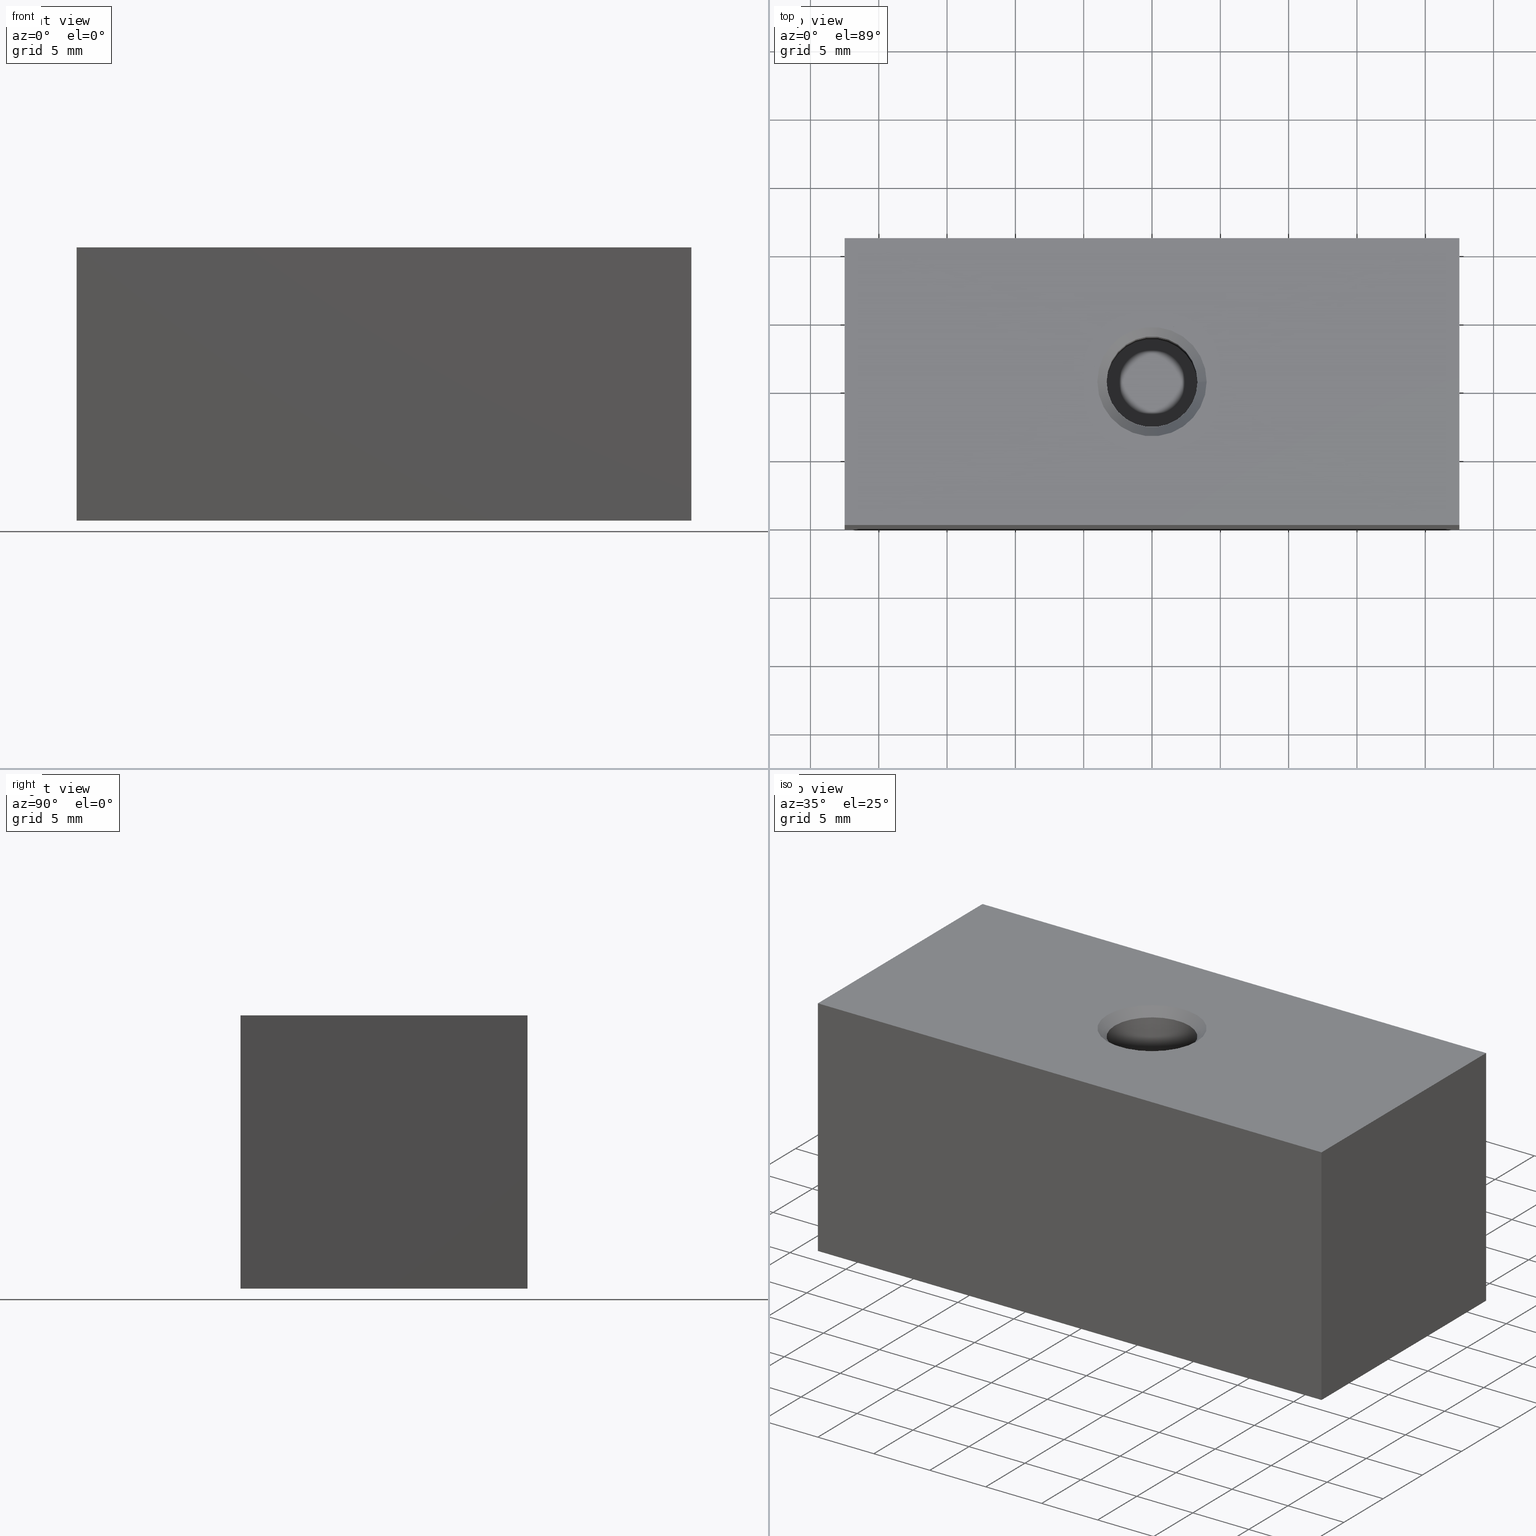
[diagram: canonical four-view strip — front | top / right | iso, engineering-drawing reading convention]
A machine part, canonical four-view strip (front | top / right | iso — engineering-drawing reading convention). The complete STEP part file that produces these views, byte-faithful:
ISO-10303-21;
HEADER;
/* Generated by software containing ST-Developer
 * from STEP Tools, Inc. (www.steptools.com) 
 */

FILE_DESCRIPTION(
/* description */ ('WKZ-0451'),
/* implementation_level */ '2;1');

FILE_NAME(
/* name */ 
'H:\\Eigene Dateien\\CAD Workspace Vault\\CAD\\E_3_Nocken\\E_3_01_Aufs
chwei\X\DFnocke\\12_Einlegeteil\\E_3_01_12_19_00_WKZ-0451.stp',
/* time_stamp */ '2024-01-22T15:19:29+01:00',
/* author */ ('DFischer'),
/* organization */ (''),
/* preprocessor_version */ 'ST-DEVELOPER v18.1',
/* originating_system */ 'Autodesk Inventor 2021',
/* authorisation */ '');

FILE_SCHEMA (('AUTOMOTIVE_DESIGN { 1 0 10303 214 3 1 1 }'));
ENDSEC;

DATA;
#10=MECHANICAL_DESIGN_GEOMETRIC_PRESENTATION_REPRESENTATION('',(#47,#48),
#1315);
#11=ITEM_DEFINED_TRANSFORMATION($,$,#775,#852);
#12=ITEM_DEFINED_TRANSFORMATION($,$,#800,#853);
#13=ITEM_DEFINED_TRANSFORMATION($,$,#800,#854);
#14=ITEM_DEFINED_TRANSFORMATION($,$,#800,#855);
#15=(
REPRESENTATION_RELATIONSHIP($,$,#1331,#1330)
REPRESENTATION_RELATIONSHIP_WITH_TRANSFORMATION(#11)
SHAPE_REPRESENTATION_RELATIONSHIP()
);
#16=(
REPRESENTATION_RELATIONSHIP($,$,#1332,#1330)
REPRESENTATION_RELATIONSHIP_WITH_TRANSFORMATION(#12)
SHAPE_REPRESENTATION_RELATIONSHIP()
);
#17=(
REPRESENTATION_RELATIONSHIP($,$,#1332,#1330)
REPRESENTATION_RELATIONSHIP_WITH_TRANSFORMATION(#13)
SHAPE_REPRESENTATION_RELATIONSHIP()
);
#18=(
REPRESENTATION_RELATIONSHIP($,$,#1332,#1330)
REPRESENTATION_RELATIONSHIP_WITH_TRANSFORMATION(#14)
SHAPE_REPRESENTATION_RELATIONSHIP()
);
#19=CONTEXT_DEPENDENT_SHAPE_REPRESENTATION(#15,#1326);
#20=CONTEXT_DEPENDENT_SHAPE_REPRESENTATION(#16,#1327);
#21=CONTEXT_DEPENDENT_SHAPE_REPRESENTATION(#17,#1328);
#22=CONTEXT_DEPENDENT_SHAPE_REPRESENTATION(#18,#1329);
#23=NEXT_ASSEMBLY_USAGE_OCCURRENCE('E_3_01_12_19_00_WKZ-0451:1',
'E_3_01_12_19_00_WKZ-0451:1','E_3_01_12_19_00_WKZ-0451:1',#1334,#1335,
'E_3_01_12_19_00_WKZ-0451:1');
#24=NEXT_ASSEMBLY_USAGE_OCCURRENCE(
'E_3_01_12_19_00_WKZ-0451_KVT 136M8:1',
'E_3_01_12_19_00_WKZ-0451_KVT 136M8:1',
'E_3_01_12_19_00_WKZ-0451_KVT 136M8:1',#1334,#1336,
'E_3_01_12_19_00_WKZ-0451_KVT 136M8:1');
#25=NEXT_ASSEMBLY_USAGE_OCCURRENCE(
'E_3_01_12_19_00_WKZ-0451_KVT 136M8:2',
'E_3_01_12_19_00_WKZ-0451_KVT 136M8:2',
'E_3_01_12_19_00_WKZ-0451_KVT 136M8:2',#1334,#1336,
'E_3_01_12_19_00_WKZ-0451_KVT 136M8:2');
#26=NEXT_ASSEMBLY_USAGE_OCCURRENCE(
'E_3_01_12_19_00_WKZ-0451_KVT 136M8:3',
'E_3_01_12_19_00_WKZ-0451_KVT 136M8:3',
'E_3_01_12_19_00_WKZ-0451_KVT 136M8:3',#1334,#1336,
'E_3_01_12_19_00_WKZ-0451_KVT 136M8:3');
#27=CONICAL_SURFACE('',#808,4.932,0.785398163397448);
#28=CONICAL_SURFACE('',#836,3.66175,0.785398163397448);
#29=CONICAL_SURFACE('',#844,3.66175,0.785398163397447);
#30=CONICAL_SURFACE('',#847,4.932,0.785398163397448);
#31=(
BOUNDED_CURVE()
B_SPLINE_CURVE(2,(#1135,#1136,#1137),.UNSPECIFIED.,.F.,.F.)
B_SPLINE_CURVE_WITH_KNOTS((3,3),(0.,0.0816882775153315),.UNSPECIFIED.)
CURVE()
GEOMETRIC_REPRESENTATION_ITEM()
RATIONAL_B_SPLINE_CURVE((1.,1.00152979051967,1.))
REPRESENTATION_ITEM('')
);
#32=(
BOUNDED_CURVE()
B_SPLINE_CURVE(2,(#1145,#1146,#1147),.UNSPECIFIED.,.F.,.F.)
B_SPLINE_CURVE_WITH_KNOTS((3,3),(0.,0.081688277515332),.UNSPECIFIED.)
CURVE()
GEOMETRIC_REPRESENTATION_ITEM()
RATIONAL_B_SPLINE_CURVE((1.,1.00152979046463,1.))
REPRESENTATION_ITEM('')
);
#33=(
BOUNDED_CURVE()
B_SPLINE_CURVE(2,(#1163,#1164,#1165),.UNSPECIFIED.,.F.,.F.)
B_SPLINE_CURVE_WITH_KNOTS((3,3),(0.,0.0816882775153316),.UNSPECIFIED.)
CURVE()
GEOMETRIC_REPRESENTATION_ITEM()
RATIONAL_B_SPLINE_CURVE((1.,1.00152979045932,1.))
REPRESENTATION_ITEM('')
);
#34=(
BOUNDED_CURVE()
B_SPLINE_CURVE(2,(#1168,#1169,#1170),.UNSPECIFIED.,.F.,.F.)
B_SPLINE_CURVE_WITH_KNOTS((3,3),(0.,0.0816882775153319),.UNSPECIFIED.)
CURVE()
GEOMETRIC_REPRESENTATION_ITEM()
RATIONAL_B_SPLINE_CURVE((1.,1.00152979048942,1.))
REPRESENTATION_ITEM('')
);
#35=(
BOUNDED_CURVE()
B_SPLINE_CURVE(2,(#1177,#1178,#1179),.UNSPECIFIED.,.F.,.F.)
B_SPLINE_CURVE_WITH_KNOTS((3,3),(0.,0.081688277515332),.UNSPECIFIED.)
CURVE()
GEOMETRIC_REPRESENTATION_ITEM()
RATIONAL_B_SPLINE_CURVE((1.,1.0015297903924,1.))
REPRESENTATION_ITEM('')
);
#36=(
BOUNDED_CURVE()
B_SPLINE_CURVE(2,(#1183,#1184,#1185),.UNSPECIFIED.,.F.,.F.)
B_SPLINE_CURVE_WITH_KNOTS((3,3),(0.,0.0816882775153318),.UNSPECIFIED.)
CURVE()
GEOMETRIC_REPRESENTATION_ITEM()
RATIONAL_B_SPLINE_CURVE((1.,1.00152979043675,1.))
REPRESENTATION_ITEM('')
);
#37=(
BOUNDED_CURVE()
B_SPLINE_CURVE(2,(#1196,#1197,#1198),.UNSPECIFIED.,.F.,.F.)
B_SPLINE_CURVE_WITH_KNOTS((3,3),(0.,0.0816882775153319),.UNSPECIFIED.)
CURVE()
GEOMETRIC_REPRESENTATION_ITEM()
RATIONAL_B_SPLINE_CURVE((1.,1.0015297904407,1.))
REPRESENTATION_ITEM('')
);
#38=(
BOUNDED_CURVE()
B_SPLINE_CURVE(2,(#1202,#1203,#1204),.UNSPECIFIED.,.F.,.F.)
B_SPLINE_CURVE_WITH_KNOTS((3,3),(0.,0.0816882775153318),.UNSPECIFIED.)
CURVE()
GEOMETRIC_REPRESENTATION_ITEM()
RATIONAL_B_SPLINE_CURVE((1.,1.0015297904438,1.))
REPRESENTATION_ITEM('')
);
#39=(
BOUNDED_CURVE()
B_SPLINE_CURVE(2,(#1216,#1217,#1218),.UNSPECIFIED.,.F.,.F.)
B_SPLINE_CURVE_WITH_KNOTS((3,3),(0.,0.0816882775153316),.UNSPECIFIED.)
CURVE()
GEOMETRIC_REPRESENTATION_ITEM()
RATIONAL_B_SPLINE_CURVE((1.,1.00152979048114,1.))
REPRESENTATION_ITEM('')
);
#40=(
BOUNDED_CURVE()
B_SPLINE_CURVE(2,(#1236,#1237,#1238),.UNSPECIFIED.,.F.,.F.)
B_SPLINE_CURVE_WITH_KNOTS((3,3),(0.,0.0816882775153316),.UNSPECIFIED.)
CURVE()
GEOMETRIC_REPRESENTATION_ITEM()
RATIONAL_B_SPLINE_CURVE((1.,1.00152979053072,1.))
REPRESENTATION_ITEM('')
);
#41=(
BOUNDED_CURVE()
B_SPLINE_CURVE(2,(#1250,#1251,#1252),.UNSPECIFIED.,.F.,.F.)
B_SPLINE_CURVE_WITH_KNOTS((3,3),(0.,0.0816882775153316),.UNSPECIFIED.)
CURVE()
GEOMETRIC_REPRESENTATION_ITEM()
RATIONAL_B_SPLINE_CURVE((1.,1.0015297904218,1.))
REPRESENTATION_ITEM('')
);
#42=(
BOUNDED_CURVE()
B_SPLINE_CURVE(2,(#1269,#1270,#1271),.UNSPECIFIED.,.F.,.F.)
B_SPLINE_CURVE_WITH_KNOTS((3,3),(0.,0.0816882775153316),.UNSPECIFIED.)
CURVE()
GEOMETRIC_REPRESENTATION_ITEM()
RATIONAL_B_SPLINE_CURVE((1.,1.0015297904218,1.))
REPRESENTATION_ITEM('')
);
#43=SHAPE_REPRESENTATION_RELATIONSHIP('SRR','None',#1331,#45);
#44=SHAPE_REPRESENTATION_RELATIONSHIP('SRR','None',#1332,#46);
#45=ADVANCED_BREP_SHAPE_REPRESENTATION('',(#49),#1313);
#46=ADVANCED_BREP_SHAPE_REPRESENTATION('',(#50),#1314);
#47=STYLED_ITEM('',(#738),#49);
#48=STYLED_ITEM('',(#739),#50);
#49=MANIFOLD_SOLID_BREP('Volumenk\X\F6rper1',#713);
#50=MANIFOLD_SOLID_BREP('Solid1',#714);
#51=FACE_BOUND('',#128,.T.);
#52=FACE_BOUND('',#130,.T.);
#53=FACE_BOUND('',#131,.T.);
#54=FACE_BOUND('',#158,.T.);
#55=FACE_BOUND('',#160,.T.);
#56=PLANE('',#781);
#57=PLANE('',#787);
#58=PLANE('',#793);
#59=PLANE('',#794);
#60=PLANE('',#795);
#61=PLANE('',#796);
#62=PLANE('',#797);
#63=PLANE('',#798);
#64=PLANE('',#799);
#65=PLANE('',#801);
#66=PLANE('',#802);
#67=PLANE('',#804);
#68=PLANE('',#806);
#69=PLANE('',#807);
#70=PLANE('',#821);
#71=PLANE('',#822);
#72=PLANE('',#823);
#73=PLANE('',#825);
#74=PLANE('',#826);
#75=PLANE('',#830);
#76=PLANE('',#831);
#77=PLANE('',#832);
#78=PLANE('',#834);
#79=PLANE('',#835);
#80=PLANE('',#850);
#81=PLANE('',#851);
#82=FACE_OUTER_BOUND('',#119,.T.);
#83=FACE_OUTER_BOUND('',#120,.T.);
#84=FACE_OUTER_BOUND('',#121,.T.);
#85=FACE_OUTER_BOUND('',#122,.T.);
#86=FACE_OUTER_BOUND('',#123,.T.);
#87=FACE_OUTER_BOUND('',#124,.T.);
#88=FACE_OUTER_BOUND('',#125,.T.);
#89=FACE_OUTER_BOUND('',#126,.T.);
#90=FACE_OUTER_BOUND('',#127,.T.);
#91=FACE_OUTER_BOUND('',#129,.T.);
#92=FACE_OUTER_BOUND('',#132,.T.);
#93=FACE_OUTER_BOUND('',#133,.T.);
#94=FACE_OUTER_BOUND('',#134,.T.);
#95=FACE_OUTER_BOUND('',#135,.T.);
#96=FACE_OUTER_BOUND('',#136,.T.);
#97=FACE_OUTER_BOUND('',#137,.T.);
#98=FACE_OUTER_BOUND('',#138,.T.);
#99=FACE_OUTER_BOUND('',#139,.T.);
#100=FACE_OUTER_BOUND('',#140,.T.);
#101=FACE_OUTER_BOUND('',#141,.T.);
#102=FACE_OUTER_BOUND('',#142,.T.);
#103=FACE_OUTER_BOUND('',#143,.T.);
#104=FACE_OUTER_BOUND('',#144,.T.);
#105=FACE_OUTER_BOUND('',#145,.T.);
#106=FACE_OUTER_BOUND('',#146,.T.);
#107=FACE_OUTER_BOUND('',#147,.T.);
#108=FACE_OUTER_BOUND('',#148,.T.);
#109=FACE_OUTER_BOUND('',#149,.T.);
#110=FACE_OUTER_BOUND('',#150,.T.);
#111=FACE_OUTER_BOUND('',#151,.T.);
#112=FACE_OUTER_BOUND('',#152,.T.);
#113=FACE_OUTER_BOUND('',#153,.T.);
#114=FACE_OUTER_BOUND('',#154,.T.);
#115=FACE_OUTER_BOUND('',#155,.T.);
#116=FACE_OUTER_BOUND('',#156,.T.);
#117=FACE_OUTER_BOUND('',#157,.T.);
#118=FACE_OUTER_BOUND('',#159,.T.);
#119=EDGE_LOOP('',(#469,#470,#471,#472,#473,#474));
#120=EDGE_LOOP('',(#475,#476));
#121=EDGE_LOOP('',(#477,#478,#479,#480,#481,#482));
#122=EDGE_LOOP('',(#483,#484));
#123=EDGE_LOOP('',(#485,#486,#487,#488,#489,#490));
#124=EDGE_LOOP('',(#491,#492));
#125=EDGE_LOOP('',(#493,#494,#495,#496));
#126=EDGE_LOOP('',(#497,#498,#499,#500));
#127=EDGE_LOOP('',(#501,#502,#503,#504));
#128=EDGE_LOOP('',(#505,#506));
#129=EDGE_LOOP('',(#507,#508,#509,#510));
#130=EDGE_LOOP('',(#511,#512));
#131=EDGE_LOOP('',(#513,#514));
#132=EDGE_LOOP('',(#515,#516,#517,#518));
#133=EDGE_LOOP('',(#519,#520,#521,#522));
#134=EDGE_LOOP('',(#523,#524,#525,#526,#527,#528));
#135=EDGE_LOOP('',(#529,#530,#531,#532));
#136=EDGE_LOOP('',(#533,#534,#535,#536));
#137=EDGE_LOOP('',(#537,#538,#539,#540,#541,#542));
#138=EDGE_LOOP('',(#543,#544,#545,#546));
#139=EDGE_LOOP('',(#547,#548,#549,#550,#551,#552,#553,#554,#555,#556,#557,
#558,#559,#560,#561,#562,#563));
#140=EDGE_LOOP('',(#564,#565,#566,#567));
#141=EDGE_LOOP('',(#568,#569,#570,#571));
#142=EDGE_LOOP('',(#572,#573,#574,#575,#576,#577));
#143=EDGE_LOOP('',(#578,#579,#580,#581));
#144=EDGE_LOOP('',(#582,#583,#584,#585));
#145=EDGE_LOOP('',(#586,#587,#588,#589,#590,#591));
#146=EDGE_LOOP('',(#592,#593,#594,#595));
#147=EDGE_LOOP('',(#596,#597,#598,#599,#600,#601));
#148=EDGE_LOOP('',(#602,#603,#604,#605,#606,#607));
#149=EDGE_LOOP('',(#608,#609,#610,#611));
#150=EDGE_LOOP('',(#612,#613,#614,#615));
#151=EDGE_LOOP('',(#616,#617,#618,#619,#620,#621));
#152=EDGE_LOOP('',(#622,#623,#624,#625));
#153=EDGE_LOOP('',(#626,#627,#628,#629,#630,#631));
#154=EDGE_LOOP('',(#632,#633,#634,#635,#636,#637));
#155=EDGE_LOOP('',(#638,#639,#640,#641,#642,#643));
#156=EDGE_LOOP('',(#644,#645,#646,#647,#648,#649,#650,#651,#652,#653,#654,
#655,#656,#657,#658,#659,#660));
#157=EDGE_LOOP('',(#661,#662));
#158=EDGE_LOOP('',(#663,#664));
#159=EDGE_LOOP('',(#665,#666));
#160=EDGE_LOOP('',(#667,#668));
#161=LINE('',#1078,#211);
#162=LINE('',#1089,#212);
#163=LINE('',#1100,#213);
#164=LINE('',#1108,#214);
#165=LINE('',#1110,#215);
#166=LINE('',#1112,#216);
#167=LINE('',#1113,#217);
#168=LINE('',#1116,#218);
#169=LINE('',#1118,#219);
#170=LINE('',#1119,#220);
#171=LINE('',#1122,#221);
#172=LINE('',#1123,#222);
#173=LINE('',#1126,#223);
#174=LINE('',#1127,#224);
#175=LINE('',#1129,#225);
#176=LINE('',#1139,#226);
#177=LINE('',#1141,#227);
#178=LINE('',#1143,#228);
#179=LINE('',#1148,#229);
#180=LINE('',#1153,#230);
#181=LINE('',#1154,#231);
#182=LINE('',#1159,#232);
#183=LINE('',#1160,#233);
#184=LINE('',#1167,#234);
#185=LINE('',#1171,#235);
#186=LINE('',#1189,#236);
#187=LINE('',#1209,#237);
#188=LINE('',#1212,#238);
#189=LINE('',#1220,#239);
#190=LINE('',#1222,#240);
#191=LINE('',#1223,#241);
#192=LINE('',#1226,#242);
#193=LINE('',#1227,#243);
#194=LINE('',#1232,#244);
#195=LINE('',#1233,#245);
#196=LINE('',#1239,#246);
#197=LINE('',#1240,#247);
#198=LINE('',#1247,#248);
#199=LINE('',#1254,#249);
#200=LINE('',#1256,#250);
#201=LINE('',#1257,#251);
#202=LINE('',#1260,#252);
#203=LINE('',#1261,#253);
#204=LINE('',#1266,#254);
#205=LINE('',#1267,#255);
#206=LINE('',#1272,#256);
#207=LINE('',#1280,#257);
#208=LINE('',#1286,#258);
#209=LINE('',#1292,#259);
#210=LINE('',#1301,#260);
#211=VECTOR('',#866,4.33);
#212=VECTOR('',#879,4.33);
#213=VECTOR('',#892,4.33);
#214=VECTOR('',#901,10.);
#215=VECTOR('',#902,10.);
#216=VECTOR('',#903,10.);
#217=VECTOR('',#904,10.);
#218=VECTOR('',#907,10.);
#219=VECTOR('',#908,10.);
#220=VECTOR('',#909,10.);
#221=VECTOR('',#912,10.);
#222=VECTOR('',#913,10.);
#223=VECTOR('',#916,10.);
#224=VECTOR('',#917,10.);
#225=VECTOR('',#920,10.);
#226=VECTOR('',#927,10.);
#227=VECTOR('',#928,10.);
#228=VECTOR('',#929,10.);
#229=VECTOR('',#930,10.);
#230=VECTOR('',#935,10.);
#231=VECTOR('',#936,10.);
#232=VECTOR('',#941,10.);
#233=VECTOR('',#942,10.);
#234=VECTOR('',#945,10.);
#235=VECTOR('',#946,10.);
#236=VECTOR('',#957,4.932);
#237=VECTOR('',#972,10.);
#238=VECTOR('',#975,10.);
#239=VECTOR('',#980,10.);
#240=VECTOR('',#981,10.);
#241=VECTOR('',#982,10.);
#242=VECTOR('',#985,10.);
#243=VECTOR('',#986,10.);
#244=VECTOR('',#991,10.);
#245=VECTOR('',#992,10.);
#246=VECTOR('',#995,10.);
#247=VECTOR('',#996,10.);
#248=VECTOR('',#1005,10.);
#249=VECTOR('',#1008,10.);
#250=VECTOR('',#1009,10.);
#251=VECTOR('',#1010,10.);
#252=VECTOR('',#1013,10.);
#253=VECTOR('',#1014,10.);
#254=VECTOR('',#1019,10.);
#255=VECTOR('',#1020,10.);
#256=VECTOR('',#1023,10.);
#257=VECTOR('',#1032,3.66175);
#258=VECTOR('',#1039,3.3235);
#259=VECTOR('',#1046,3.66175);
#260=VECTOR('',#1057,4.932);
#261=CIRCLE('',#777,4.33);
#262=CIRCLE('',#778,4.33);
#263=CIRCLE('',#779,4.33);
#264=CIRCLE('',#780,4.33);
#265=CIRCLE('',#783,4.33);
#266=CIRCLE('',#784,4.33);
#267=CIRCLE('',#785,4.33);
#268=CIRCLE('',#786,4.33);
#269=CIRCLE('',#789,4.33);
#270=CIRCLE('',#790,4.33);
#271=CIRCLE('',#791,4.33);
#272=CIRCLE('',#792,4.33);
#273=CIRCLE('',#803,4.954);
#274=CIRCLE('',#805,4.954);
#275=CIRCLE('',#809,5.53);
#276=CIRCLE('',#810,4.954);
#277=CIRCLE('',#811,5.53);
#278=CIRCLE('',#812,4.334);
#279=CIRCLE('',#813,4.334);
#280=CIRCLE('',#814,5.53);
#281=CIRCLE('',#815,4.954);
#282=CIRCLE('',#816,5.53);
#283=CIRCLE('',#818,5.53);
#284=CIRCLE('',#820,5.53);
#285=CIRCLE('',#824,4.954);
#286=CIRCLE('',#828,5.53);
#287=CIRCLE('',#829,5.53);
#288=CIRCLE('',#833,4.954);
#289=CIRCLE('',#837,4.);
#290=CIRCLE('',#838,4.);
#291=CIRCLE('',#839,3.3235);
#292=CIRCLE('',#840,3.3235);
#293=CIRCLE('',#842,3.3235);
#294=CIRCLE('',#843,3.3235);
#295=CIRCLE('',#845,4.);
#296=CIRCLE('',#846,4.);
#297=CIRCLE('',#848,4.334);
#298=CIRCLE('',#849,4.334);
#299=VERTEX_POINT('',#1073);
#300=VERTEX_POINT('',#1074);
#301=VERTEX_POINT('',#1077);
#302=VERTEX_POINT('',#1079);
#303=VERTEX_POINT('',#1084);
#304=VERTEX_POINT('',#1085);
#305=VERTEX_POINT('',#1088);
#306=VERTEX_POINT('',#1090);
#307=VERTEX_POINT('',#1095);
#308=VERTEX_POINT('',#1096);
#309=VERTEX_POINT('',#1099);
#310=VERTEX_POINT('',#1101);
#311=VERTEX_POINT('',#1106);
#312=VERTEX_POINT('',#1107);
#313=VERTEX_POINT('',#1109);
#314=VERTEX_POINT('',#1111);
#315=VERTEX_POINT('',#1115);
#316=VERTEX_POINT('',#1117);
#317=VERTEX_POINT('',#1121);
#318=VERTEX_POINT('',#1125);
#319=VERTEX_POINT('',#1133);
#320=VERTEX_POINT('',#1134);
#321=VERTEX_POINT('',#1138);
#322=VERTEX_POINT('',#1140);
#323=VERTEX_POINT('',#1142);
#324=VERTEX_POINT('',#1144);
#325=VERTEX_POINT('',#1150);
#326=VERTEX_POINT('',#1152);
#327=VERTEX_POINT('',#1156);
#328=VERTEX_POINT('',#1158);
#329=VERTEX_POINT('',#1162);
#330=VERTEX_POINT('',#1166);
#331=VERTEX_POINT('',#1174);
#332=VERTEX_POINT('',#1176);
#333=VERTEX_POINT('',#1180);
#334=VERTEX_POINT('',#1182);
#335=VERTEX_POINT('',#1186);
#336=VERTEX_POINT('',#1188);
#337=VERTEX_POINT('',#1190);
#338=VERTEX_POINT('',#1193);
#339=VERTEX_POINT('',#1195);
#340=VERTEX_POINT('',#1199);
#341=VERTEX_POINT('',#1201);
#342=VERTEX_POINT('',#1207);
#343=VERTEX_POINT('',#1211);
#344=VERTEX_POINT('',#1215);
#345=VERTEX_POINT('',#1219);
#346=VERTEX_POINT('',#1221);
#347=VERTEX_POINT('',#1225);
#348=VERTEX_POINT('',#1229);
#349=VERTEX_POINT('',#1231);
#350=VERTEX_POINT('',#1235);
#351=VERTEX_POINT('',#1243);
#352=VERTEX_POINT('',#1245);
#353=VERTEX_POINT('',#1249);
#354=VERTEX_POINT('',#1253);
#355=VERTEX_POINT('',#1255);
#356=VERTEX_POINT('',#1259);
#357=VERTEX_POINT('',#1263);
#358=VERTEX_POINT('',#1265);
#359=VERTEX_POINT('',#1275);
#360=VERTEX_POINT('',#1276);
#361=VERTEX_POINT('',#1279);
#362=VERTEX_POINT('',#1281);
#363=VERTEX_POINT('',#1285);
#364=VERTEX_POINT('',#1287);
#365=VERTEX_POINT('',#1291);
#366=VERTEX_POINT('',#1293);
#367=VERTEX_POINT('',#1297);
#368=VERTEX_POINT('',#1298);
#369=EDGE_CURVE('',#299,#300,#261,.T.);
#370=EDGE_CURVE('',#300,#299,#262,.T.);
#371=EDGE_CURVE('',#300,#301,#161,.T.);
#372=EDGE_CURVE('',#302,#301,#263,.T.);
#373=EDGE_CURVE('',#301,#302,#264,.T.);
#374=EDGE_CURVE('',#303,#304,#265,.T.);
#375=EDGE_CURVE('',#304,#303,#266,.T.);
#376=EDGE_CURVE('',#304,#305,#162,.T.);
#377=EDGE_CURVE('',#306,#305,#267,.T.);
#378=EDGE_CURVE('',#305,#306,#268,.T.);
#379=EDGE_CURVE('',#307,#308,#269,.T.);
#380=EDGE_CURVE('',#308,#307,#270,.T.);
#381=EDGE_CURVE('',#308,#309,#163,.T.);
#382=EDGE_CURVE('',#310,#309,#271,.T.);
#383=EDGE_CURVE('',#309,#310,#272,.T.);
#384=EDGE_CURVE('',#311,#312,#164,.T.);
#385=EDGE_CURVE('',#312,#313,#165,.T.);
#386=EDGE_CURVE('',#313,#314,#166,.T.);
#387=EDGE_CURVE('',#314,#311,#167,.T.);
#388=EDGE_CURVE('',#315,#312,#168,.T.);
#389=EDGE_CURVE('',#316,#315,#169,.T.);
#390=EDGE_CURVE('',#313,#316,#170,.T.);
#391=EDGE_CURVE('',#317,#316,#171,.T.);
#392=EDGE_CURVE('',#314,#317,#172,.T.);
#393=EDGE_CURVE('',#318,#317,#173,.T.);
#394=EDGE_CURVE('',#311,#318,#174,.T.);
#395=EDGE_CURVE('',#315,#318,#175,.T.);
#396=EDGE_CURVE('',#319,#320,#31,.T.);
#397=EDGE_CURVE('',#319,#321,#176,.T.);
#398=EDGE_CURVE('',#321,#322,#177,.T.);
#399=EDGE_CURVE('',#323,#322,#178,.T.);
#400=EDGE_CURVE('',#324,#323,#32,.T.);
#401=EDGE_CURVE('',#320,#324,#179,.T.);
#402=EDGE_CURVE('',#323,#325,#273,.T.);
#403=EDGE_CURVE('',#322,#326,#180,.T.);
#404=EDGE_CURVE('',#325,#326,#181,.T.);
#405=EDGE_CURVE('',#327,#319,#274,.T.);
#406=EDGE_CURVE('',#327,#328,#182,.T.);
#407=EDGE_CURVE('',#328,#321,#183,.T.);
#408=EDGE_CURVE('',#329,#327,#33,.T.);
#409=EDGE_CURVE('',#330,#329,#184,.T.);
#410=EDGE_CURVE('',#325,#330,#34,.T.);
#411=EDGE_CURVE('',#326,#328,#185,.T.);
#412=EDGE_CURVE('',#331,#330,#275,.T.);
#413=EDGE_CURVE('',#331,#332,#35,.T.);
#414=EDGE_CURVE('',#332,#333,#276,.T.);
#415=EDGE_CURVE('',#333,#334,#36,.T.);
#416=EDGE_CURVE('',#335,#334,#277,.T.);
#417=EDGE_CURVE('',#335,#336,#186,.T.);
#418=EDGE_CURVE('',#336,#337,#278,.T.);
#419=EDGE_CURVE('',#337,#336,#279,.T.);
#420=EDGE_CURVE('',#338,#335,#280,.T.);
#421=EDGE_CURVE('',#338,#339,#37,.T.);
#422=EDGE_CURVE('',#339,#340,#281,.T.);
#423=EDGE_CURVE('',#340,#341,#38,.T.);
#424=EDGE_CURVE('',#324,#341,#282,.T.);
#425=EDGE_CURVE('',#342,#329,#283,.T.);
#426=EDGE_CURVE('',#342,#331,#187,.T.);
#427=EDGE_CURVE('',#341,#343,#188,.T.);
#428=EDGE_CURVE('',#320,#343,#284,.T.);
#429=EDGE_CURVE('',#344,#342,#39,.T.);
#430=EDGE_CURVE('',#344,#345,#189,.T.);
#431=EDGE_CURVE('',#345,#346,#190,.T.);
#432=EDGE_CURVE('',#332,#346,#191,.T.);
#433=EDGE_CURVE('',#346,#347,#192,.T.);
#434=EDGE_CURVE('',#333,#347,#193,.T.);
#435=EDGE_CURVE('',#348,#344,#285,.T.);
#436=EDGE_CURVE('',#348,#349,#194,.T.);
#437=EDGE_CURVE('',#349,#345,#195,.T.);
#438=EDGE_CURVE('',#350,#348,#40,.T.);
#439=EDGE_CURVE('',#334,#350,#196,.T.);
#440=EDGE_CURVE('',#347,#349,#197,.T.);
#441=EDGE_CURVE('',#351,#350,#286,.T.);
#442=EDGE_CURVE('',#352,#351,#287,.T.);
#443=EDGE_CURVE('',#352,#338,#198,.T.);
#444=EDGE_CURVE('',#353,#352,#41,.T.);
#445=EDGE_CURVE('',#353,#354,#199,.T.);
#446=EDGE_CURVE('',#354,#355,#200,.T.);
#447=EDGE_CURVE('',#339,#355,#201,.T.);
#448=EDGE_CURVE('',#355,#356,#202,.T.);
#449=EDGE_CURVE('',#340,#356,#203,.T.);
#450=EDGE_CURVE('',#357,#353,#288,.T.);
#451=EDGE_CURVE('',#357,#358,#204,.T.);
#452=EDGE_CURVE('',#358,#354,#205,.T.);
#453=EDGE_CURVE('',#343,#357,#42,.T.);
#454=EDGE_CURVE('',#356,#358,#206,.T.);
#455=EDGE_CURVE('',#359,#360,#289,.T.);
#456=EDGE_CURVE('',#360,#359,#290,.T.);
#457=EDGE_CURVE('',#360,#361,#207,.T.);
#458=EDGE_CURVE('',#361,#362,#291,.T.);
#459=EDGE_CURVE('',#362,#361,#292,.T.);
#460=EDGE_CURVE('',#361,#363,#208,.T.);
#461=EDGE_CURVE('',#363,#364,#293,.T.);
#462=EDGE_CURVE('',#364,#363,#294,.T.);
#463=EDGE_CURVE('',#363,#365,#209,.T.);
#464=EDGE_CURVE('',#366,#365,#295,.T.);
#465=EDGE_CURVE('',#365,#366,#296,.T.);
#466=EDGE_CURVE('',#367,#368,#297,.T.);
#467=EDGE_CURVE('',#368,#367,#298,.T.);
#468=EDGE_CURVE('',#368,#351,#210,.T.);
#469=ORIENTED_EDGE('',*,*,#369,.F.);
#470=ORIENTED_EDGE('',*,*,#370,.F.);
#471=ORIENTED_EDGE('',*,*,#371,.T.);
#472=ORIENTED_EDGE('',*,*,#372,.F.);
#473=ORIENTED_EDGE('',*,*,#373,.F.);
#474=ORIENTED_EDGE('',*,*,#371,.F.);
#475=ORIENTED_EDGE('',*,*,#372,.T.);
#476=ORIENTED_EDGE('',*,*,#373,.T.);
#477=ORIENTED_EDGE('',*,*,#374,.F.);
#478=ORIENTED_EDGE('',*,*,#375,.F.);
#479=ORIENTED_EDGE('',*,*,#376,.T.);
#480=ORIENTED_EDGE('',*,*,#377,.F.);
#481=ORIENTED_EDGE('',*,*,#378,.F.);
#482=ORIENTED_EDGE('',*,*,#376,.F.);
#483=ORIENTED_EDGE('',*,*,#377,.T.);
#484=ORIENTED_EDGE('',*,*,#378,.T.);
#485=ORIENTED_EDGE('',*,*,#379,.F.);
#486=ORIENTED_EDGE('',*,*,#380,.F.);
#487=ORIENTED_EDGE('',*,*,#381,.T.);
#488=ORIENTED_EDGE('',*,*,#382,.F.);
#489=ORIENTED_EDGE('',*,*,#383,.F.);
#490=ORIENTED_EDGE('',*,*,#381,.F.);
#491=ORIENTED_EDGE('',*,*,#382,.T.);
#492=ORIENTED_EDGE('',*,*,#383,.T.);
#493=ORIENTED_EDGE('',*,*,#384,.T.);
#494=ORIENTED_EDGE('',*,*,#385,.T.);
#495=ORIENTED_EDGE('',*,*,#386,.T.);
#496=ORIENTED_EDGE('',*,*,#387,.T.);
#497=ORIENTED_EDGE('',*,*,#388,.F.);
#498=ORIENTED_EDGE('',*,*,#389,.F.);
#499=ORIENTED_EDGE('',*,*,#390,.F.);
#500=ORIENTED_EDGE('',*,*,#385,.F.);
#501=ORIENTED_EDGE('',*,*,#390,.T.);
#502=ORIENTED_EDGE('',*,*,#391,.F.);
#503=ORIENTED_EDGE('',*,*,#392,.F.);
#504=ORIENTED_EDGE('',*,*,#386,.F.);
#505=ORIENTED_EDGE('',*,*,#369,.T.);
#506=ORIENTED_EDGE('',*,*,#370,.T.);
#507=ORIENTED_EDGE('',*,*,#392,.T.);
#508=ORIENTED_EDGE('',*,*,#393,.F.);
#509=ORIENTED_EDGE('',*,*,#394,.F.);
#510=ORIENTED_EDGE('',*,*,#387,.F.);
#511=ORIENTED_EDGE('',*,*,#374,.T.);
#512=ORIENTED_EDGE('',*,*,#375,.T.);
#513=ORIENTED_EDGE('',*,*,#379,.T.);
#514=ORIENTED_EDGE('',*,*,#380,.T.);
#515=ORIENTED_EDGE('',*,*,#394,.T.);
#516=ORIENTED_EDGE('',*,*,#395,.F.);
#517=ORIENTED_EDGE('',*,*,#388,.T.);
#518=ORIENTED_EDGE('',*,*,#384,.F.);
#519=ORIENTED_EDGE('',*,*,#395,.T.);
#520=ORIENTED_EDGE('',*,*,#393,.T.);
#521=ORIENTED_EDGE('',*,*,#391,.T.);
#522=ORIENTED_EDGE('',*,*,#389,.T.);
#523=ORIENTED_EDGE('',*,*,#396,.F.);
#524=ORIENTED_EDGE('',*,*,#397,.T.);
#525=ORIENTED_EDGE('',*,*,#398,.T.);
#526=ORIENTED_EDGE('',*,*,#399,.F.);
#527=ORIENTED_EDGE('',*,*,#400,.F.);
#528=ORIENTED_EDGE('',*,*,#401,.F.);
#529=ORIENTED_EDGE('',*,*,#402,.F.);
#530=ORIENTED_EDGE('',*,*,#399,.T.);
#531=ORIENTED_EDGE('',*,*,#403,.T.);
#532=ORIENTED_EDGE('',*,*,#404,.F.);
#533=ORIENTED_EDGE('',*,*,#405,.F.);
#534=ORIENTED_EDGE('',*,*,#406,.T.);
#535=ORIENTED_EDGE('',*,*,#407,.T.);
#536=ORIENTED_EDGE('',*,*,#397,.F.);
#537=ORIENTED_EDGE('',*,*,#408,.F.);
#538=ORIENTED_EDGE('',*,*,#409,.F.);
#539=ORIENTED_EDGE('',*,*,#410,.F.);
#540=ORIENTED_EDGE('',*,*,#404,.T.);
#541=ORIENTED_EDGE('',*,*,#411,.T.);
#542=ORIENTED_EDGE('',*,*,#406,.F.);
#543=ORIENTED_EDGE('',*,*,#398,.F.);
#544=ORIENTED_EDGE('',*,*,#407,.F.);
#545=ORIENTED_EDGE('',*,*,#411,.F.);
#546=ORIENTED_EDGE('',*,*,#403,.F.);
#547=ORIENTED_EDGE('',*,*,#400,.T.);
#548=ORIENTED_EDGE('',*,*,#402,.T.);
#549=ORIENTED_EDGE('',*,*,#410,.T.);
#550=ORIENTED_EDGE('',*,*,#412,.F.);
#551=ORIENTED_EDGE('',*,*,#413,.T.);
#552=ORIENTED_EDGE('',*,*,#414,.T.);
#553=ORIENTED_EDGE('',*,*,#415,.T.);
#554=ORIENTED_EDGE('',*,*,#416,.F.);
#555=ORIENTED_EDGE('',*,*,#417,.T.);
#556=ORIENTED_EDGE('',*,*,#418,.T.);
#557=ORIENTED_EDGE('',*,*,#419,.T.);
#558=ORIENTED_EDGE('',*,*,#417,.F.);
#559=ORIENTED_EDGE('',*,*,#420,.F.);
#560=ORIENTED_EDGE('',*,*,#421,.T.);
#561=ORIENTED_EDGE('',*,*,#422,.T.);
#562=ORIENTED_EDGE('',*,*,#423,.T.);
#563=ORIENTED_EDGE('',*,*,#424,.F.);
#564=ORIENTED_EDGE('',*,*,#409,.T.);
#565=ORIENTED_EDGE('',*,*,#425,.F.);
#566=ORIENTED_EDGE('',*,*,#426,.T.);
#567=ORIENTED_EDGE('',*,*,#412,.T.);
#568=ORIENTED_EDGE('',*,*,#401,.T.);
#569=ORIENTED_EDGE('',*,*,#424,.T.);
#570=ORIENTED_EDGE('',*,*,#427,.T.);
#571=ORIENTED_EDGE('',*,*,#428,.F.);
#572=ORIENTED_EDGE('',*,*,#429,.F.);
#573=ORIENTED_EDGE('',*,*,#430,.T.);
#574=ORIENTED_EDGE('',*,*,#431,.T.);
#575=ORIENTED_EDGE('',*,*,#432,.F.);
#576=ORIENTED_EDGE('',*,*,#413,.F.);
#577=ORIENTED_EDGE('',*,*,#426,.F.);
#578=ORIENTED_EDGE('',*,*,#414,.F.);
#579=ORIENTED_EDGE('',*,*,#432,.T.);
#580=ORIENTED_EDGE('',*,*,#433,.T.);
#581=ORIENTED_EDGE('',*,*,#434,.F.);
#582=ORIENTED_EDGE('',*,*,#435,.F.);
#583=ORIENTED_EDGE('',*,*,#436,.T.);
#584=ORIENTED_EDGE('',*,*,#437,.T.);
#585=ORIENTED_EDGE('',*,*,#430,.F.);
#586=ORIENTED_EDGE('',*,*,#438,.F.);
#587=ORIENTED_EDGE('',*,*,#439,.F.);
#588=ORIENTED_EDGE('',*,*,#415,.F.);
#589=ORIENTED_EDGE('',*,*,#434,.T.);
#590=ORIENTED_EDGE('',*,*,#440,.T.);
#591=ORIENTED_EDGE('',*,*,#436,.F.);
#592=ORIENTED_EDGE('',*,*,#431,.F.);
#593=ORIENTED_EDGE('',*,*,#437,.F.);
#594=ORIENTED_EDGE('',*,*,#440,.F.);
#595=ORIENTED_EDGE('',*,*,#433,.F.);
#596=ORIENTED_EDGE('',*,*,#439,.T.);
#597=ORIENTED_EDGE('',*,*,#441,.F.);
#598=ORIENTED_EDGE('',*,*,#442,.F.);
#599=ORIENTED_EDGE('',*,*,#443,.T.);
#600=ORIENTED_EDGE('',*,*,#420,.T.);
#601=ORIENTED_EDGE('',*,*,#416,.T.);
#602=ORIENTED_EDGE('',*,*,#444,.F.);
#603=ORIENTED_EDGE('',*,*,#445,.T.);
#604=ORIENTED_EDGE('',*,*,#446,.T.);
#605=ORIENTED_EDGE('',*,*,#447,.F.);
#606=ORIENTED_EDGE('',*,*,#421,.F.);
#607=ORIENTED_EDGE('',*,*,#443,.F.);
#608=ORIENTED_EDGE('',*,*,#422,.F.);
#609=ORIENTED_EDGE('',*,*,#447,.T.);
#610=ORIENTED_EDGE('',*,*,#448,.T.);
#611=ORIENTED_EDGE('',*,*,#449,.F.);
#612=ORIENTED_EDGE('',*,*,#450,.F.);
#613=ORIENTED_EDGE('',*,*,#451,.T.);
#614=ORIENTED_EDGE('',*,*,#452,.T.);
#615=ORIENTED_EDGE('',*,*,#445,.F.);
#616=ORIENTED_EDGE('',*,*,#453,.F.);
#617=ORIENTED_EDGE('',*,*,#427,.F.);
#618=ORIENTED_EDGE('',*,*,#423,.F.);
#619=ORIENTED_EDGE('',*,*,#449,.T.);
#620=ORIENTED_EDGE('',*,*,#454,.T.);
#621=ORIENTED_EDGE('',*,*,#451,.F.);
#622=ORIENTED_EDGE('',*,*,#446,.F.);
#623=ORIENTED_EDGE('',*,*,#452,.F.);
#624=ORIENTED_EDGE('',*,*,#454,.F.);
#625=ORIENTED_EDGE('',*,*,#448,.F.);
#626=ORIENTED_EDGE('',*,*,#455,.F.);
#627=ORIENTED_EDGE('',*,*,#456,.F.);
#628=ORIENTED_EDGE('',*,*,#457,.T.);
#629=ORIENTED_EDGE('',*,*,#458,.T.);
#630=ORIENTED_EDGE('',*,*,#459,.T.);
#631=ORIENTED_EDGE('',*,*,#457,.F.);
#632=ORIENTED_EDGE('',*,*,#459,.F.);
#633=ORIENTED_EDGE('',*,*,#458,.F.);
#634=ORIENTED_EDGE('',*,*,#460,.T.);
#635=ORIENTED_EDGE('',*,*,#461,.T.);
#636=ORIENTED_EDGE('',*,*,#462,.T.);
#637=ORIENTED_EDGE('',*,*,#460,.F.);
#638=ORIENTED_EDGE('',*,*,#462,.F.);
#639=ORIENTED_EDGE('',*,*,#461,.F.);
#640=ORIENTED_EDGE('',*,*,#463,.T.);
#641=ORIENTED_EDGE('',*,*,#464,.F.);
#642=ORIENTED_EDGE('',*,*,#465,.F.);
#643=ORIENTED_EDGE('',*,*,#463,.F.);
#644=ORIENTED_EDGE('',*,*,#466,.F.);
#645=ORIENTED_EDGE('',*,*,#467,.F.);
#646=ORIENTED_EDGE('',*,*,#468,.T.);
#647=ORIENTED_EDGE('',*,*,#441,.T.);
#648=ORIENTED_EDGE('',*,*,#438,.T.);
#649=ORIENTED_EDGE('',*,*,#435,.T.);
#650=ORIENTED_EDGE('',*,*,#429,.T.);
#651=ORIENTED_EDGE('',*,*,#425,.T.);
#652=ORIENTED_EDGE('',*,*,#408,.T.);
#653=ORIENTED_EDGE('',*,*,#405,.T.);
#654=ORIENTED_EDGE('',*,*,#396,.T.);
#655=ORIENTED_EDGE('',*,*,#428,.T.);
#656=ORIENTED_EDGE('',*,*,#453,.T.);
#657=ORIENTED_EDGE('',*,*,#450,.T.);
#658=ORIENTED_EDGE('',*,*,#444,.T.);
#659=ORIENTED_EDGE('',*,*,#442,.T.);
#660=ORIENTED_EDGE('',*,*,#468,.F.);
#661=ORIENTED_EDGE('',*,*,#466,.T.);
#662=ORIENTED_EDGE('',*,*,#467,.T.);
#663=ORIENTED_EDGE('',*,*,#464,.T.);
#664=ORIENTED_EDGE('',*,*,#465,.T.);
#665=ORIENTED_EDGE('',*,*,#419,.F.);
#666=ORIENTED_EDGE('',*,*,#418,.F.);
#667=ORIENTED_EDGE('',*,*,#455,.T.);
#668=ORIENTED_EDGE('',*,*,#456,.T.);
#669=CYLINDRICAL_SURFACE('',#776,4.33);
#670=CYLINDRICAL_SURFACE('',#782,4.33);
#671=CYLINDRICAL_SURFACE('',#788,4.33);
#672=CYLINDRICAL_SURFACE('',#817,5.53);
#673=CYLINDRICAL_SURFACE('',#819,5.53);
#674=CYLINDRICAL_SURFACE('',#827,5.53);
#675=CYLINDRICAL_SURFACE('',#841,3.3235);
#676=ADVANCED_FACE('',(#82),#669,.F.);
#677=ADVANCED_FACE('',(#83),#56,.T.);
#678=ADVANCED_FACE('',(#84),#670,.F.);
#679=ADVANCED_FACE('',(#85),#57,.T.);
#680=ADVANCED_FACE('',(#86),#671,.F.);
#681=ADVANCED_FACE('',(#87),#58,.T.);
#682=ADVANCED_FACE('',(#88),#59,.T.);
#683=ADVANCED_FACE('',(#89),#60,.T.);
#684=ADVANCED_FACE('',(#90,#51),#61,.T.);
#685=ADVANCED_FACE('',(#91,#52,#53),#62,.T.);
#686=ADVANCED_FACE('',(#92),#63,.T.);
#687=ADVANCED_FACE('',(#93),#64,.T.);
#688=ADVANCED_FACE('',(#94),#65,.F.);
#689=ADVANCED_FACE('',(#95),#66,.F.);
#690=ADVANCED_FACE('',(#96),#67,.F.);
#691=ADVANCED_FACE('',(#97),#68,.F.);
#692=ADVANCED_FACE('',(#98),#69,.F.);
#693=ADVANCED_FACE('',(#99),#27,.T.);
#694=ADVANCED_FACE('',(#100),#672,.T.);
#695=ADVANCED_FACE('',(#101),#673,.T.);
#696=ADVANCED_FACE('',(#102),#70,.F.);
#697=ADVANCED_FACE('',(#103),#71,.F.);
#698=ADVANCED_FACE('',(#104),#72,.F.);
#699=ADVANCED_FACE('',(#105),#73,.F.);
#700=ADVANCED_FACE('',(#106),#74,.F.);
#701=ADVANCED_FACE('',(#107),#674,.T.);
#702=ADVANCED_FACE('',(#108),#75,.F.);
#703=ADVANCED_FACE('',(#109),#76,.F.);
#704=ADVANCED_FACE('',(#110),#77,.F.);
#705=ADVANCED_FACE('',(#111),#78,.F.);
#706=ADVANCED_FACE('',(#112),#79,.F.);
#707=ADVANCED_FACE('',(#113),#28,.F.);
#708=ADVANCED_FACE('',(#114),#675,.F.);
#709=ADVANCED_FACE('',(#115),#29,.F.);
#710=ADVANCED_FACE('',(#116),#30,.T.);
#711=ADVANCED_FACE('',(#117,#54),#80,.T.);
#712=ADVANCED_FACE('',(#118,#55),#81,.T.);
#713=CLOSED_SHELL('',(#676,#677,#678,#679,#680,#681,#682,#683,#684,#685,
#686,#687));
#714=CLOSED_SHELL('',(#688,#689,#690,#691,#692,#693,#694,#695,#696,#697,
#698,#699,#700,#701,#702,#703,#704,#705,#706,#707,#708,#709,#710,#711,#712));
#715=DERIVED_UNIT_ELEMENT(#719,1.);
#716=DERIVED_UNIT_ELEMENT(#1317,3.);
#717=DERIVED_UNIT_ELEMENT(#719,1.);
#718=DERIVED_UNIT_ELEMENT(#1317,3.);
#719=(
MASS_UNIT()
NAMED_UNIT(*)
SI_UNIT($,.GRAM.)
);
#720=DERIVED_UNIT((#715,#716));
#721=DERIVED_UNIT((#717,#718));
#722=MEASURE_REPRESENTATION_ITEM('density measure',
POSITIVE_RATIO_MEASURE(1.),#720);
#723=MEASURE_REPRESENTATION_ITEM('density measure',
POSITIVE_RATIO_MEASURE(1.),#721);
#724=PROPERTY_DEFINITION_REPRESENTATION(#734,#728);
#725=PROPERTY_DEFINITION_REPRESENTATION(#735,#729);
#726=PROPERTY_DEFINITION_REPRESENTATION(#736,#730);
#727=PROPERTY_DEFINITION_REPRESENTATION(#737,#731);
#728=REPRESENTATION('material name',(#732),#1313);
#729=REPRESENTATION('density',(#722),#1313);
#730=REPRESENTATION('material name',(#733),#1314);
#731=REPRESENTATION('density',(#723),#1314);
#732=DESCRIPTIVE_REPRESENTATION_ITEM('Generisch','Generisch');
#733=DESCRIPTIVE_REPRESENTATION_ITEM('Generisch','Generisch');
#734=PROPERTY_DEFINITION('material property','material name',#1335);
#735=PROPERTY_DEFINITION('material property','density of part',#1335);
#736=PROPERTY_DEFINITION('material property','material name',#1336);
#737=PROPERTY_DEFINITION('material property','density of part',#1336);
#738=PRESENTATION_STYLE_ASSIGNMENT((#740));
#739=PRESENTATION_STYLE_ASSIGNMENT((#741));
#740=SURFACE_STYLE_USAGE(.BOTH.,#746);
#741=SURFACE_STYLE_USAGE(.BOTH.,#747);
#742=SURFACE_STYLE_RENDERING_WITH_PROPERTIES($,#754,(#744));
#743=SURFACE_STYLE_RENDERING_WITH_PROPERTIES($,#755,(#745));
#744=SURFACE_STYLE_TRANSPARENT(0.);
#745=SURFACE_STYLE_TRANSPARENT(0.);
#746=SURFACE_SIDE_STYLE('',(#748,#742));
#747=SURFACE_SIDE_STYLE('',(#749,#743));
#748=SURFACE_STYLE_FILL_AREA(#750);
#749=SURFACE_STYLE_FILL_AREA(#751);
#750=FILL_AREA_STYLE('',(#752));
#751=FILL_AREA_STYLE('',(#753));
#752=FILL_AREA_STYLE_COLOUR('',#754);
#753=FILL_AREA_STYLE_COLOUR('',#755);
#754=COLOUR_RGB('',0.749019607843137,0.749019607843137,0.749019607843137);
#755=COLOUR_RGB('',0.976470588235294,0.729411764705882,0.266666666666667);
#756=DATE_TIME_ROLE('creation_date');
#757=DATE_TIME_ROLE('creation_date');
#758=DATE_TIME_ROLE('creation_date');
#759=APPLIED_DATE_AND_TIME_ASSIGNMENT(#762,#756,(#1334));
#760=APPLIED_DATE_AND_TIME_ASSIGNMENT(#763,#757,(#1335));
#761=APPLIED_DATE_AND_TIME_ASSIGNMENT(#764,#758,(#1336));
#762=DATE_AND_TIME(#765,#768);
#763=DATE_AND_TIME(#766,#769);
#764=DATE_AND_TIME(#767,#770);
#765=CALENDAR_DATE(2023,9,8);
#766=CALENDAR_DATE(2023,3,8);
#767=CALENDAR_DATE(2023,9,8);
#768=LOCAL_TIME(0,0,0.,#771);
#769=LOCAL_TIME(0,0,0.,#772);
#770=LOCAL_TIME(0,0,0.,#773);
#771=COORDINATED_UNIVERSAL_TIME_OFFSET(0,0,.BEHIND.);
#772=COORDINATED_UNIVERSAL_TIME_OFFSET(0,0,.BEHIND.);
#773=COORDINATED_UNIVERSAL_TIME_OFFSET(0,0,.BEHIND.);
#774=AXIS2_PLACEMENT_3D('placement',#1070,#856,#857);
#775=AXIS2_PLACEMENT_3D('placement',#1071,#858,#859);
#776=AXIS2_PLACEMENT_3D('',#1072,#860,#861);
#777=AXIS2_PLACEMENT_3D('',#1075,#862,#863);
#778=AXIS2_PLACEMENT_3D('',#1076,#864,#865);
#779=AXIS2_PLACEMENT_3D('',#1080,#867,#868);
#780=AXIS2_PLACEMENT_3D('',#1081,#869,#870);
#781=AXIS2_PLACEMENT_3D('',#1082,#871,#872);
#782=AXIS2_PLACEMENT_3D('',#1083,#873,#874);
#783=AXIS2_PLACEMENT_3D('',#1086,#875,#876);
#784=AXIS2_PLACEMENT_3D('',#1087,#877,#878);
#785=AXIS2_PLACEMENT_3D('',#1091,#880,#881);
#786=AXIS2_PLACEMENT_3D('',#1092,#882,#883);
#787=AXIS2_PLACEMENT_3D('',#1093,#884,#885);
#788=AXIS2_PLACEMENT_3D('',#1094,#886,#887);
#789=AXIS2_PLACEMENT_3D('',#1097,#888,#889);
#790=AXIS2_PLACEMENT_3D('',#1098,#890,#891);
#791=AXIS2_PLACEMENT_3D('',#1102,#893,#894);
#792=AXIS2_PLACEMENT_3D('',#1103,#895,#896);
#793=AXIS2_PLACEMENT_3D('',#1104,#897,#898);
#794=AXIS2_PLACEMENT_3D('',#1105,#899,#900);
#795=AXIS2_PLACEMENT_3D('',#1114,#905,#906);
#796=AXIS2_PLACEMENT_3D('',#1120,#910,#911);
#797=AXIS2_PLACEMENT_3D('',#1124,#914,#915);
#798=AXIS2_PLACEMENT_3D('',#1128,#918,#919);
#799=AXIS2_PLACEMENT_3D('',#1130,#921,#922);
#800=AXIS2_PLACEMENT_3D('placement',#1131,#923,#924);
#801=AXIS2_PLACEMENT_3D('',#1132,#925,#926);
#802=AXIS2_PLACEMENT_3D('',#1149,#931,#932);
#803=AXIS2_PLACEMENT_3D('',#1151,#933,#934);
#804=AXIS2_PLACEMENT_3D('',#1155,#937,#938);
#805=AXIS2_PLACEMENT_3D('',#1157,#939,#940);
#806=AXIS2_PLACEMENT_3D('',#1161,#943,#944);
#807=AXIS2_PLACEMENT_3D('',#1172,#947,#948);
#808=AXIS2_PLACEMENT_3D('',#1173,#949,#950);
#809=AXIS2_PLACEMENT_3D('',#1175,#951,#952);
#810=AXIS2_PLACEMENT_3D('',#1181,#953,#954);
#811=AXIS2_PLACEMENT_3D('',#1187,#955,#956);
#812=AXIS2_PLACEMENT_3D('',#1191,#958,#959);
#813=AXIS2_PLACEMENT_3D('',#1192,#960,#961);
#814=AXIS2_PLACEMENT_3D('',#1194,#962,#963);
#815=AXIS2_PLACEMENT_3D('',#1200,#964,#965);
#816=AXIS2_PLACEMENT_3D('',#1205,#966,#967);
#817=AXIS2_PLACEMENT_3D('',#1206,#968,#969);
#818=AXIS2_PLACEMENT_3D('',#1208,#970,#971);
#819=AXIS2_PLACEMENT_3D('',#1210,#973,#974);
#820=AXIS2_PLACEMENT_3D('',#1213,#976,#977);
#821=AXIS2_PLACEMENT_3D('',#1214,#978,#979);
#822=AXIS2_PLACEMENT_3D('',#1224,#983,#984);
#823=AXIS2_PLACEMENT_3D('',#1228,#987,#988);
#824=AXIS2_PLACEMENT_3D('',#1230,#989,#990);
#825=AXIS2_PLACEMENT_3D('',#1234,#993,#994);
#826=AXIS2_PLACEMENT_3D('',#1241,#997,#998);
#827=AXIS2_PLACEMENT_3D('',#1242,#999,#1000);
#828=AXIS2_PLACEMENT_3D('',#1244,#1001,#1002);
#829=AXIS2_PLACEMENT_3D('',#1246,#1003,#1004);
#830=AXIS2_PLACEMENT_3D('',#1248,#1006,#1007);
#831=AXIS2_PLACEMENT_3D('',#1258,#1011,#1012);
#832=AXIS2_PLACEMENT_3D('',#1262,#1015,#1016);
#833=AXIS2_PLACEMENT_3D('',#1264,#1017,#1018);
#834=AXIS2_PLACEMENT_3D('',#1268,#1021,#1022);
#835=AXIS2_PLACEMENT_3D('',#1273,#1024,#1025);
#836=AXIS2_PLACEMENT_3D('',#1274,#1026,#1027);
#837=AXIS2_PLACEMENT_3D('',#1277,#1028,#1029);
#838=AXIS2_PLACEMENT_3D('',#1278,#1030,#1031);
#839=AXIS2_PLACEMENT_3D('',#1282,#1033,#1034);
#840=AXIS2_PLACEMENT_3D('',#1283,#1035,#1036);
#841=AXIS2_PLACEMENT_3D('',#1284,#1037,#1038);
#842=AXIS2_PLACEMENT_3D('',#1288,#1040,#1041);
#843=AXIS2_PLACEMENT_3D('',#1289,#1042,#1043);
#844=AXIS2_PLACEMENT_3D('',#1290,#1044,#1045);
#845=AXIS2_PLACEMENT_3D('',#1294,#1047,#1048);
#846=AXIS2_PLACEMENT_3D('',#1295,#1049,#1050);
#847=AXIS2_PLACEMENT_3D('',#1296,#1051,#1052);
#848=AXIS2_PLACEMENT_3D('',#1299,#1053,#1054);
#849=AXIS2_PLACEMENT_3D('',#1300,#1055,#1056);
#850=AXIS2_PLACEMENT_3D('',#1302,#1058,#1059);
#851=AXIS2_PLACEMENT_3D('',#1303,#1060,#1061);
#852=AXIS2_PLACEMENT_3D('',#1304,#1062,#1063);
#853=AXIS2_PLACEMENT_3D('',#1305,#1064,#1065);
#854=AXIS2_PLACEMENT_3D('',#1306,#1066,#1067);
#855=AXIS2_PLACEMENT_3D('',#1307,#1068,#1069);
#856=DIRECTION('axis',(0.,0.,1.));
#857=DIRECTION('refdir',(1.,0.,0.));
#858=DIRECTION('axis',(0.,0.,1.));
#859=DIRECTION('refdir',(1.,0.,0.));
#860=DIRECTION('center_axis',(0.,0.,1.));
#861=DIRECTION('ref_axis',(1.,0.,0.));
#862=DIRECTION('center_axis',(0.,0.,-1.));
#863=DIRECTION('ref_axis',(1.,0.,0.));
#864=DIRECTION('center_axis',(0.,0.,-1.));
#865=DIRECTION('ref_axis',(1.,0.,0.));
#866=DIRECTION('',(0.,0.,-1.));
#867=DIRECTION('center_axis',(0.,0.,1.));
#868=DIRECTION('ref_axis',(1.,0.,0.));
#869=DIRECTION('center_axis',(0.,0.,1.));
#870=DIRECTION('ref_axis',(1.,0.,0.));
#871=DIRECTION('center_axis',(0.,0.,1.));
#872=DIRECTION('ref_axis',(1.,0.,0.));
#873=DIRECTION('center_axis',(0.,1.,0.));
#874=DIRECTION('ref_axis',(1.,0.,0.));
#875=DIRECTION('center_axis',(0.,-1.,0.));
#876=DIRECTION('ref_axis',(1.,0.,0.));
#877=DIRECTION('center_axis',(0.,-1.,0.));
#878=DIRECTION('ref_axis',(1.,0.,0.));
#879=DIRECTION('',(0.,-1.,0.));
#880=DIRECTION('center_axis',(0.,1.,0.));
#881=DIRECTION('ref_axis',(1.,0.,0.));
#882=DIRECTION('center_axis',(0.,1.,0.));
#883=DIRECTION('ref_axis',(1.,0.,0.));
#884=DIRECTION('center_axis',(0.,1.,0.));
#885=DIRECTION('ref_axis',(1.,0.,0.));
#886=DIRECTION('center_axis',(0.,1.,0.));
#887=DIRECTION('ref_axis',(1.,0.,0.));
#888=DIRECTION('center_axis',(0.,-1.,0.));
#889=DIRECTION('ref_axis',(1.,0.,0.));
#890=DIRECTION('center_axis',(0.,-1.,0.));
#891=DIRECTION('ref_axis',(1.,0.,0.));
#892=DIRECTION('',(0.,-1.,0.));
#893=DIRECTION('center_axis',(0.,1.,0.));
#894=DIRECTION('ref_axis',(1.,0.,0.));
#895=DIRECTION('center_axis',(0.,1.,0.));
#896=DIRECTION('ref_axis',(1.,0.,0.));
#897=DIRECTION('center_axis',(0.,1.,0.));
#898=DIRECTION('ref_axis',(1.,0.,0.));
#899=DIRECTION('center_axis',(-1.,0.,0.));
#900=DIRECTION('ref_axis',(0.,0.,1.));
#901=DIRECTION('',(0.,-1.,-1.05735526154777E-16));
#902=DIRECTION('',(0.,-1.80411241501588E-16,1.));
#903=DIRECTION('',(0.,1.,0.));
#904=DIRECTION('',(0.,0.,-1.));
#905=DIRECTION('center_axis',(0.,-1.,-1.80411241501588E-16));
#906=DIRECTION('ref_axis',(0.,1.80411241501588E-16,-1.));
#907=DIRECTION('',(-1.,0.,0.));
#908=DIRECTION('',(0.,1.80411241501588E-16,-1.));
#909=DIRECTION('',(1.,0.,0.));
#910=DIRECTION('center_axis',(0.,0.,1.));
#911=DIRECTION('ref_axis',(0.,-1.,0.));
#912=DIRECTION('',(0.,-1.,0.));
#913=DIRECTION('',(1.,0.,0.));
#914=DIRECTION('center_axis',(0.,1.,0.));
#915=DIRECTION('ref_axis',(0.,0.,1.));
#916=DIRECTION('',(0.,0.,1.));
#917=DIRECTION('',(1.,0.,0.));
#918=DIRECTION('center_axis',(0.,1.05735526154777E-16,-1.));
#919=DIRECTION('ref_axis',(0.,1.,1.05735526154777E-16));
#920=DIRECTION('',(0.,1.,1.05735526154777E-16));
#921=DIRECTION('center_axis',(1.,0.,0.));
#922=DIRECTION('ref_axis',(0.,0.,-1.));
#923=DIRECTION('axis',(0.,0.,1.));
#924=DIRECTION('refdir',(1.,0.,0.));
#925=DIRECTION('center_axis',(0.,0.499999999999999,0.866025403784439));
#926=DIRECTION('ref_axis',(-1.,0.,0.));
#927=DIRECTION('',(0.,-0.866025403784439,0.499999999999999));
#928=DIRECTION('',(-1.,0.,0.));
#929=DIRECTION('',(0.,-0.866025403784439,0.499999999999999));
#930=DIRECTION('',(-1.,0.,0.));
#931=DIRECTION('center_axis',(-1.,0.,0.));
#932=DIRECTION('ref_axis',(0.,-0.499999999999999,-0.866025403784439));
#933=DIRECTION('center_axis',(-1.,0.,0.));
#934=DIRECTION('ref_axis',(0.,1.,0.));
#935=DIRECTION('',(0.,-0.499999999999999,-0.866025403784439));
#936=DIRECTION('',(0.,-0.866025403784439,0.499999999999999));
#937=DIRECTION('center_axis',(1.,0.,0.));
#938=DIRECTION('ref_axis',(0.,0.499999999999999,0.866025403784439));
#939=DIRECTION('center_axis',(1.,0.,0.));
#940=DIRECTION('ref_axis',(0.,1.,0.));
#941=DIRECTION('',(0.,-0.866025403784439,0.499999999999999));
#942=DIRECTION('',(0.,0.499999999999999,0.866025403784439));
#943=DIRECTION('center_axis',(0.,-0.499999999999999,-0.866025403784439));
#944=DIRECTION('ref_axis',(1.,0.,0.));
#945=DIRECTION('',(1.,0.,0.));
#946=DIRECTION('',(1.,0.,0.));
#947=DIRECTION('center_axis',(0.,-0.866025403784439,0.499999999999999));
#948=DIRECTION('ref_axis',(0.,-0.499999999999999,-0.866025403784439));
#949=DIRECTION('center_axis',(1.,0.,0.));
#950=DIRECTION('ref_axis',(0.,1.,0.));
#951=DIRECTION('center_axis',(1.,0.,0.));
#952=DIRECTION('ref_axis',(0.,0.,-1.));
#953=DIRECTION('center_axis',(-1.,0.,0.));
#954=DIRECTION('ref_axis',(0.,1.,0.));
#955=DIRECTION('center_axis',(1.,0.,0.));
#956=DIRECTION('ref_axis',(0.,0.,-1.));
#957=DIRECTION('',(-0.707106781186547,0.707106781186548,8.65956056235493E-17));
#958=DIRECTION('center_axis',(1.,0.,0.));
#959=DIRECTION('ref_axis',(0.,0.,-1.));
#960=DIRECTION('center_axis',(1.,0.,0.));
#961=DIRECTION('ref_axis',(0.,0.,-1.));
#962=DIRECTION('center_axis',(1.,0.,0.));
#963=DIRECTION('ref_axis',(0.,0.,-1.));
#964=DIRECTION('center_axis',(-1.,0.,0.));
#965=DIRECTION('ref_axis',(0.,1.,0.));
#966=DIRECTION('center_axis',(1.,0.,0.));
#967=DIRECTION('ref_axis',(0.,0.,-1.));
#968=DIRECTION('center_axis',(1.,0.,0.));
#969=DIRECTION('ref_axis',(0.,1.,0.));
#970=DIRECTION('center_axis',(1.,0.,0.));
#971=DIRECTION('ref_axis',(0.,0.,-1.));
#972=DIRECTION('',(-1.,0.,0.));
#973=DIRECTION('center_axis',(1.,0.,0.));
#974=DIRECTION('ref_axis',(0.,1.,0.));
#975=DIRECTION('',(1.,0.,0.));
#976=DIRECTION('center_axis',(1.,0.,0.));
#977=DIRECTION('ref_axis',(0.,0.,-1.));
#978=DIRECTION('center_axis',(0.,0.499999999999999,-0.866025403784439));
#979=DIRECTION('ref_axis',(-1.,0.,0.));
#980=DIRECTION('',(0.,0.866025403784439,0.499999999999999));
#981=DIRECTION('',(-1.,0.,0.));
#982=DIRECTION('',(0.,0.866025403784439,0.499999999999999));
#983=DIRECTION('center_axis',(-1.,0.,0.));
#984=DIRECTION('ref_axis',(0.,-0.499999999999999,0.866025403784439));
#985=DIRECTION('',(0.,-0.499999999999999,0.866025403784439));
#986=DIRECTION('',(0.,0.866025403784439,0.499999999999999));
#987=DIRECTION('center_axis',(1.,0.,0.));
#988=DIRECTION('ref_axis',(0.,0.499999999999999,-0.866025403784439));
#989=DIRECTION('center_axis',(1.,0.,0.));
#990=DIRECTION('ref_axis',(0.,1.,0.));
#991=DIRECTION('',(0.,0.866025403784439,0.499999999999999));
#992=DIRECTION('',(0.,0.499999999999999,-0.866025403784439));
#993=DIRECTION('center_axis',(0.,-0.499999999999999,0.866025403784439));
#994=DIRECTION('ref_axis',(1.,0.,0.));
#995=DIRECTION('',(1.,0.,0.));
#996=DIRECTION('',(1.,0.,0.));
#997=DIRECTION('center_axis',(0.,0.866025403784439,0.499999999999999));
#998=DIRECTION('ref_axis',(0.,-0.499999999999999,0.866025403784439));
#999=DIRECTION('center_axis',(1.,0.,0.));
#1000=DIRECTION('ref_axis',(0.,-0.86602540378444,0.499999999999998));
#1001=DIRECTION('center_axis',(1.,0.,0.));
#1002=DIRECTION('ref_axis',(0.,0.,-1.));
#1003=DIRECTION('center_axis',(1.,0.,0.));
#1004=DIRECTION('ref_axis',(0.,0.,-1.));
#1005=DIRECTION('',(-1.,0.,0.));
#1006=DIRECTION('center_axis',(0.,-1.,0.));
#1007=DIRECTION('ref_axis',(-1.,0.,0.));
#1008=DIRECTION('',(0.,0.,-1.));
#1009=DIRECTION('',(-1.,0.,0.));
#1010=DIRECTION('',(0.,0.,-1.));
#1011=DIRECTION('center_axis',(-1.,0.,0.));
#1012=DIRECTION('ref_axis',(0.,1.,0.));
#1013=DIRECTION('',(0.,1.,0.));
#1014=DIRECTION('',(0.,0.,-1.));
#1015=DIRECTION('center_axis',(1.,0.,0.));
#1016=DIRECTION('ref_axis',(0.,-1.,0.));
#1017=DIRECTION('center_axis',(1.,0.,0.));
#1018=DIRECTION('ref_axis',(0.,1.,0.));
#1019=DIRECTION('',(0.,0.,-1.));
#1020=DIRECTION('',(0.,-1.,0.));
#1021=DIRECTION('center_axis',(0.,1.,0.));
#1022=DIRECTION('ref_axis',(1.,0.,0.));
#1023=DIRECTION('',(1.,0.,0.));
#1024=DIRECTION('center_axis',(0.,0.,-1.));
#1025=DIRECTION('ref_axis',(-1.,0.,0.));
#1026=DIRECTION('center_axis',(-1.,0.,0.));
#1027=DIRECTION('ref_axis',(0.,1.,0.));
#1028=DIRECTION('center_axis',(1.,0.,0.));
#1029=DIRECTION('ref_axis',(0.,1.,0.));
#1030=DIRECTION('center_axis',(1.,0.,0.));
#1031=DIRECTION('ref_axis',(0.,1.,0.));
#1032=DIRECTION('',(0.707106781186548,0.707106781186547,8.65956056235493E-17));
#1033=DIRECTION('center_axis',(1.,0.,0.));
#1034=DIRECTION('ref_axis',(0.,0.,-1.));
#1035=DIRECTION('center_axis',(1.,0.,0.));
#1036=DIRECTION('ref_axis',(0.,0.,-1.));
#1037=DIRECTION('center_axis',(1.,0.,0.));
#1038=DIRECTION('ref_axis',(0.,1.,0.));
#1039=DIRECTION('',(1.,0.,0.));
#1040=DIRECTION('center_axis',(1.,0.,0.));
#1041=DIRECTION('ref_axis',(0.,0.,-1.));
#1042=DIRECTION('center_axis',(1.,0.,0.));
#1043=DIRECTION('ref_axis',(0.,0.,-1.));
#1044=DIRECTION('center_axis',(1.,0.,0.));
#1045=DIRECTION('ref_axis',(0.,1.,0.));
#1046=DIRECTION('',(0.707106781186549,-0.707106781186546,-8.65956056235492E-17));
#1047=DIRECTION('center_axis',(-1.,0.,0.));
#1048=DIRECTION('ref_axis',(0.,1.,0.));
#1049=DIRECTION('center_axis',(-1.,0.,0.));
#1050=DIRECTION('ref_axis',(0.,1.,0.));
#1051=DIRECTION('center_axis',(-1.,0.,0.));
#1052=DIRECTION('ref_axis',(0.,1.,0.));
#1053=DIRECTION('center_axis',(1.,0.,0.));
#1054=DIRECTION('ref_axis',(0.,0.,-1.));
#1055=DIRECTION('center_axis',(1.,0.,0.));
#1056=DIRECTION('ref_axis',(0.,0.,-1.));
#1057=DIRECTION('',(-0.707106781186548,-0.707106781186547,-8.65956056235493E-17));
#1058=DIRECTION('center_axis',(1.,0.,0.));
#1059=DIRECTION('ref_axis',(0.,0.,-1.));
#1060=DIRECTION('center_axis',(-1.,0.,0.));
#1061=DIRECTION('ref_axis',(0.,0.,1.));
#1062=DIRECTION('',(0.,0.,1.));
#1063=DIRECTION('',(1.,0.,0.));
#1064=DIRECTION('',(0.,0.,1.));
#1065=DIRECTION('',(0.,1.,0.));
#1066=DIRECTION('',(0.,0.,1.));
#1067=DIRECTION('',(0.,1.,0.));
#1068=DIRECTION('',(0.,-1.,1.02798428206033E-16));
#1069=DIRECTION('',(0.,1.02798428206033E-16,1.));
#1070=CARTESIAN_POINT('',(0.,0.,0.));
#1071=CARTESIAN_POINT('',(0.,0.,0.));
#1072=CARTESIAN_POINT('Origin',(0.,10.5,3.8));
#1073=CARTESIAN_POINT('',(4.33,10.5,10.));
#1074=CARTESIAN_POINT('',(-4.33,10.5,10.));
#1075=CARTESIAN_POINT('Origin',(0.,10.5,10.));
#1076=CARTESIAN_POINT('Origin',(0.,10.5,10.));
#1077=CARTESIAN_POINT('',(-4.33,10.5,-2.4));
#1078=CARTESIAN_POINT('',(-4.33,10.5,3.8));
#1079=CARTESIAN_POINT('',(4.33,10.5,-2.4));
#1080=CARTESIAN_POINT('Origin',(0.,10.5,-2.4));
#1081=CARTESIAN_POINT('Origin',(0.,10.5,-2.4));
#1082=CARTESIAN_POINT('Origin',(0.,10.5,-2.4));
#1083=CARTESIAN_POINT('Origin',(12.5,14.8,-2.22044604925031E-15));
#1084=CARTESIAN_POINT('',(16.83,21.,-2.22044604925031E-15));
#1085=CARTESIAN_POINT('',(8.17,21.,-1.69017398521951E-15));
#1086=CARTESIAN_POINT('Origin',(12.5,21.,-2.22044604925031E-15));
#1087=CARTESIAN_POINT('Origin',(12.5,21.,-2.22044604925031E-15));
#1088=CARTESIAN_POINT('',(8.17,8.6,-1.69017398521951E-15));
#1089=CARTESIAN_POINT('',(8.17,14.8,-1.69017398521951E-15));
#1090=CARTESIAN_POINT('',(16.83,8.6,-2.22044604925031E-15));
#1091=CARTESIAN_POINT('Origin',(12.5,8.6,-2.22044604925031E-15));
#1092=CARTESIAN_POINT('Origin',(12.5,8.6,-2.22044604925031E-15));
#1093=CARTESIAN_POINT('Origin',(12.5,8.6,-2.22044604925031E-15));
#1094=CARTESIAN_POINT('Origin',(-12.5,14.8,-2.22044604925031E-15));
#1095=CARTESIAN_POINT('',(-8.17,21.,-2.22044604925031E-15));
#1096=CARTESIAN_POINT('',(-16.83,21.,-1.69017398521951E-15));
#1097=CARTESIAN_POINT('Origin',(-12.5,21.,-2.22044604925031E-15));
#1098=CARTESIAN_POINT('Origin',(-12.5,21.,-2.22044604925031E-15));
#1099=CARTESIAN_POINT('',(-16.83,8.6,-1.69017398521951E-15));
#1100=CARTESIAN_POINT('',(-16.83,14.8,-1.69017398521951E-15));
#1101=CARTESIAN_POINT('',(-8.17,8.6,-2.22044604925031E-15));
#1102=CARTESIAN_POINT('Origin',(-12.5,8.6,-2.22044604925031E-15));
#1103=CARTESIAN_POINT('Origin',(-12.5,8.6,-2.22044604925031E-15));
#1104=CARTESIAN_POINT('Origin',(-12.5,8.6,-2.22044604925031E-15));
#1105=CARTESIAN_POINT('Origin',(-22.5,10.5,-2.22044604925031E-15));
#1106=CARTESIAN_POINT('',(-22.5,21.,-10.));
#1107=CARTESIAN_POINT('',(-22.5,0.,-10.));
#1108=CARTESIAN_POINT('',(-22.5,0.,-10.));
#1109=CARTESIAN_POINT('',(-22.5,-3.60822483003176E-15,10.));
#1110=CARTESIAN_POINT('',(-22.5,-3.60822483003176E-15,10.));
#1111=CARTESIAN_POINT('',(-22.5,21.,10.));
#1112=CARTESIAN_POINT('',(-22.5,21.,10.));
#1113=CARTESIAN_POINT('',(-22.5,21.,-10.));
#1114=CARTESIAN_POINT('Origin',(0.,-3.60822483003176E-15,10.));
#1115=CARTESIAN_POINT('',(22.5,0.,-10.));
#1116=CARTESIAN_POINT('',(0.,0.,-10.));
#1117=CARTESIAN_POINT('',(22.5,-3.60822483003176E-15,10.));
#1118=CARTESIAN_POINT('',(22.5,-3.60822483003176E-15,10.));
#1119=CARTESIAN_POINT('',(0.,-3.60822483003176E-15,10.));
#1120=CARTESIAN_POINT('Origin',(0.,21.,10.));
#1121=CARTESIAN_POINT('',(22.5,21.,10.));
#1122=CARTESIAN_POINT('',(22.5,21.,10.));
#1123=CARTESIAN_POINT('',(0.,21.,10.));
#1124=CARTESIAN_POINT('Origin',(0.,21.,-10.));
#1125=CARTESIAN_POINT('',(22.5,21.,-10.));
#1126=CARTESIAN_POINT('',(22.5,21.,-10.));
#1127=CARTESIAN_POINT('',(0.,21.,-10.));
#1128=CARTESIAN_POINT('Origin',(0.,0.,-10.));
#1129=CARTESIAN_POINT('',(22.5,0.,-10.));
#1130=CARTESIAN_POINT('Origin',(22.5,10.5,-2.22044604925031E-15));
#1131=CARTESIAN_POINT('',(0.,0.,0.));
#1132=CARTESIAN_POINT('Origin',(11.78,5.0656204829279,-2.2860879517072));
#1133=CARTESIAN_POINT('',(11.78,4.53997631047716,-1.98260714724481));
#1134=CARTESIAN_POINT('',(11.204,5.04161471530329,-2.27222821530703));
#1135=CARTESIAN_POINT('Ctrl Pts',(11.78,4.53997631047716,-1.98260714724481));
#1136=CARTESIAN_POINT('Ctrl Pts',(11.5080015954531,4.7770152895869,-2.11946166564226));
#1137=CARTESIAN_POINT('Ctrl Pts',(11.204,5.04161471530329,-2.27222821530703));
#1138=CARTESIAN_POINT('',(11.78,4.02985410000171,-1.68808795170721));
#1139=CARTESIAN_POINT('',(11.78,5.0656204829279,-2.2860879517072));
#1140=CARTESIAN_POINT('',(0.62,4.02985410000171,-1.68808795170721));
#1141=CARTESIAN_POINT('',(0.62,4.02985410000171,-1.68808795170721));
#1142=CARTESIAN_POINT('',(0.62,4.53997631047716,-1.98260714724481));
#1143=CARTESIAN_POINT('',(0.62,5.0656204829279,-2.2860879517072));
#1144=CARTESIAN_POINT('',(1.196,5.04161471530329,-2.27222821530703));
#1145=CARTESIAN_POINT('Ctrl Pts',(1.196,5.04161471530329,-2.27222821530703));
#1146=CARTESIAN_POINT('Ctrl Pts',(0.89199840468534,4.77701528970749,-2.11946166571188));
#1147=CARTESIAN_POINT('Ctrl Pts',(0.619999999999999,4.53997631047716,-1.98260714724481));
#1148=CARTESIAN_POINT('',(6.2,5.04161471530329,-2.27222821530703));
#1149=CARTESIAN_POINT('Origin',(0.62,5.0656204829279,-2.2860879517072));
#1150=CARTESIAN_POINT('',(0.62,3.98697631047715,-2.9404312438304));
#1151=CARTESIAN_POINT('Origin',(0.62,0.,0.));
#1152=CARTESIAN_POINT('',(0.62,3.47685410000171,-2.6459120482928));
#1153=CARTESIAN_POINT('',(0.62,3.47685410000171,-2.6459120482928));
#1154=CARTESIAN_POINT('',(0.62,4.5126204829279,-3.2439120482928));
#1155=CARTESIAN_POINT('Origin',(11.78,4.5126204829279,-3.2439120482928));
#1156=CARTESIAN_POINT('',(11.78,3.98697631047715,-2.9404312438304));
#1157=CARTESIAN_POINT('Origin',(11.78,0.,0.));
#1158=CARTESIAN_POINT('',(11.78,3.47685410000171,-2.6459120482928));
#1159=CARTESIAN_POINT('',(11.78,4.5126204829279,-3.2439120482928));
#1160=CARTESIAN_POINT('',(11.78,4.02985410000171,-1.68808795170721));
#1161=CARTESIAN_POINT('Origin',(0.620000000000001,4.5126204829279,-3.2439120482928));
#1162=CARTESIAN_POINT('',(11.204,4.48861471530328,-3.23005231189262));
#1163=CARTESIAN_POINT('Ctrl Pts',(11.204,4.48861471530328,-3.23005231189262));
#1164=CARTESIAN_POINT('Ctrl Pts',(11.5080015952859,4.22401528973252,-3.07728576231192));
#1165=CARTESIAN_POINT('Ctrl Pts',(11.78,3.98697631047715,-2.9404312438304));
#1166=CARTESIAN_POINT('',(1.196,4.48861471530328,-3.23005231189262));
#1167=CARTESIAN_POINT('',(6.2,4.48861471530328,-3.23005231189262));
#1168=CARTESIAN_POINT('Ctrl Pts',(0.62,3.98697631047715,-2.9404312438304));
#1169=CARTESIAN_POINT('Ctrl Pts',(0.891998404574195,4.22401528961068,-3.07728576224158));
#1170=CARTESIAN_POINT('Ctrl Pts',(1.196,4.48861471530328,-3.23005231189262));
#1171=CARTESIAN_POINT('',(11.78,3.47685410000171,-2.6459120482928));
#1172=CARTESIAN_POINT('Origin',(6.2,3.75335410000171,-2.167));
#1173=CARTESIAN_POINT('Origin',(0.598,0.,0.));
#1174=CARTESIAN_POINT('',(1.196,-4.48861471530328,-3.23005231189262));
#1175=CARTESIAN_POINT('Origin',(1.196,0.,0.));
#1176=CARTESIAN_POINT('',(0.62,-3.98697631047715,-2.9404312438304));
#1177=CARTESIAN_POINT('Ctrl Pts',(1.196,-4.48861471530328,-3.23005231189262));
#1178=CARTESIAN_POINT('Ctrl Pts',(0.891998404830503,-4.22401528983391,-3.07728576237046));
#1179=CARTESIAN_POINT('Ctrl Pts',(0.619999999999999,-3.98697631047715,-2.9404312438304));
#1180=CARTESIAN_POINT('',(0.62,-4.53997631047716,-1.98260714724481));
#1181=CARTESIAN_POINT('Origin',(0.62,0.,0.));
#1182=CARTESIAN_POINT('',(1.196,-5.04161471530329,-2.27222821530703));
#1183=CARTESIAN_POINT('Ctrl Pts',(0.62,-4.53997631047716,-1.98260714724481));
#1184=CARTESIAN_POINT('Ctrl Pts',(0.891998404693944,-4.77701528971498,-2.1194616657162));
#1185=CARTESIAN_POINT('Ctrl Pts',(1.196,-5.04161471530329,-2.27222821530703));
#1186=CARTESIAN_POINT('',(1.196,-5.53,-6.77229679928486E-16));
#1187=CARTESIAN_POINT('Origin',(1.196,0.,0.));
#1188=CARTESIAN_POINT('',(0.,-4.334,-5.30761922750463E-16));
#1189=CARTESIAN_POINT('',(0.598,-4.932,-6.03995801339475E-16));
#1190=CARTESIAN_POINT('',(0.,4.334,0.));
#1191=CARTESIAN_POINT('Origin',(0.,0.,0.));
#1192=CARTESIAN_POINT('Origin',(0.,0.,0.));
#1193=CARTESIAN_POINT('',(1.196,-0.553,5.50228052719961));
#1194=CARTESIAN_POINT('Origin',(1.196,0.,0.));
#1195=CARTESIAN_POINT('',(0.62,-0.553,4.92303839107517));
#1196=CARTESIAN_POINT('Ctrl Pts',(1.196,-0.553,5.50228052719961));
#1197=CARTESIAN_POINT('Ctrl Pts',(0.891998404659801,-0.553,5.19674742798362));
#1198=CARTESIAN_POINT('Ctrl Pts',(0.619999999999999,-0.553,4.92303839107517));
#1199=CARTESIAN_POINT('',(0.62,0.553,4.92303839107517));
#1200=CARTESIAN_POINT('Origin',(0.62,0.,0.));
#1201=CARTESIAN_POINT('',(1.196,0.553,5.50228052719961));
#1202=CARTESIAN_POINT('Ctrl Pts',(0.62,0.553,4.92303839107517));
#1203=CARTESIAN_POINT('Ctrl Pts',(0.891998404660048,0.553,5.19674742798386));
#1204=CARTESIAN_POINT('Ctrl Pts',(1.196,0.553,5.50228052719961));
#1205=CARTESIAN_POINT('Origin',(1.196,0.,0.));
#1206=CARTESIAN_POINT('Origin',(6.2,0.,0.));
#1207=CARTESIAN_POINT('',(11.204,-4.48861471530328,-3.23005231189262));
#1208=CARTESIAN_POINT('Origin',(11.204,0.,0.));
#1209=CARTESIAN_POINT('',(6.2,-4.48861471530328,-3.23005231189262));
#1210=CARTESIAN_POINT('Origin',(6.2,0.,0.));
#1211=CARTESIAN_POINT('',(11.204,0.553,5.50228052719961));
#1212=CARTESIAN_POINT('',(6.2,0.553,5.50228052719961));
#1213=CARTESIAN_POINT('Origin',(11.204,0.,0.));
#1214=CARTESIAN_POINT('Origin',(11.78,-4.5126204829279,-3.2439120482928));
#1215=CARTESIAN_POINT('',(11.78,-3.98697631047715,-2.9404312438304));
#1216=CARTESIAN_POINT('Ctrl Pts',(11.78,-3.98697631047715,-2.9404312438304));
#1217=CARTESIAN_POINT('Ctrl Pts',(11.5080015954081,-4.22401528962611,-3.07728576225049));
#1218=CARTESIAN_POINT('Ctrl Pts',(11.204,-4.48861471530328,-3.23005231189262));
#1219=CARTESIAN_POINT('',(11.78,-3.47685410000171,-2.6459120482928));
#1220=CARTESIAN_POINT('',(11.78,-4.5126204829279,-3.2439120482928));
#1221=CARTESIAN_POINT('',(0.62,-3.47685410000171,-2.6459120482928));
#1222=CARTESIAN_POINT('',(0.62,-3.47685410000171,-2.6459120482928));
#1223=CARTESIAN_POINT('',(0.62,-4.5126204829279,-3.2439120482928));
#1224=CARTESIAN_POINT('Origin',(0.62,-4.5126204829279,-3.2439120482928));
#1225=CARTESIAN_POINT('',(0.62,-4.02985410000171,-1.68808795170721));
#1226=CARTESIAN_POINT('',(0.62,-4.02985410000171,-1.6880879517072));
#1227=CARTESIAN_POINT('',(0.62,-5.0656204829279,-2.2860879517072));
#1228=CARTESIAN_POINT('Origin',(11.78,-5.0656204829279,-2.2860879517072));
#1229=CARTESIAN_POINT('',(11.78,-4.53997631047716,-1.98260714724481));
#1230=CARTESIAN_POINT('Origin',(11.78,0.,0.));
#1231=CARTESIAN_POINT('',(11.78,-4.02985410000171,-1.68808795170721));
#1232=CARTESIAN_POINT('',(11.78,-5.0656204829279,-2.2860879517072));
#1233=CARTESIAN_POINT('',(11.78,-3.47685410000171,-2.6459120482928));
#1234=CARTESIAN_POINT('Origin',(0.620000000000001,-5.0656204829279,-2.2860879517072));
#1235=CARTESIAN_POINT('',(11.204,-5.04161471530329,-2.27222821530703));
#1236=CARTESIAN_POINT('Ctrl Pts',(11.204,-5.04161471530329,-2.27222821530703));
#1237=CARTESIAN_POINT('Ctrl Pts',(11.5080015955627,-4.77701528949146,-2.11946166558715));
#1238=CARTESIAN_POINT('Ctrl Pts',(11.78,-4.53997631047716,-1.98260714724481));
#1239=CARTESIAN_POINT('',(6.2,-5.04161471530329,-2.27222821530703));
#1240=CARTESIAN_POINT('',(11.78,-4.02985410000171,-1.6880879517072));
#1241=CARTESIAN_POINT('Origin',(6.2,-3.75335410000171,-2.167));
#1242=CARTESIAN_POINT('Origin',(6.2,0.,0.));
#1243=CARTESIAN_POINT('',(11.204,-5.53,-6.77229679928486E-16));
#1244=CARTESIAN_POINT('Origin',(11.204,0.,0.));
#1245=CARTESIAN_POINT('',(11.204,-0.553,5.50228052719961));
#1246=CARTESIAN_POINT('Origin',(11.204,0.,0.));
#1247=CARTESIAN_POINT('',(6.2,-0.553,5.50228052719961));
#1248=CARTESIAN_POINT('Origin',(11.78,-0.553,5.53));
#1249=CARTESIAN_POINT('',(11.78,-0.553,4.92303839107517));
#1250=CARTESIAN_POINT('Ctrl Pts',(11.78,-0.553,4.92303839107517));
#1251=CARTESIAN_POINT('Ctrl Pts',(11.5080015953315,-0.553,5.19674742799236));
#1252=CARTESIAN_POINT('Ctrl Pts',(11.204,-0.553,5.50228052719961));
#1253=CARTESIAN_POINT('',(11.78,-0.553,4.334));
#1254=CARTESIAN_POINT('',(11.78,-0.553,5.53));
#1255=CARTESIAN_POINT('',(0.62,-0.553,4.334));
#1256=CARTESIAN_POINT('',(0.62,-0.553,4.334));
#1257=CARTESIAN_POINT('',(0.62,-0.553,5.53));
#1258=CARTESIAN_POINT('Origin',(0.62,-0.553,5.53));
#1259=CARTESIAN_POINT('',(0.62,0.553,4.334));
#1260=CARTESIAN_POINT('',(0.62,0.553,4.334));
#1261=CARTESIAN_POINT('',(0.62,0.553,5.53));
#1262=CARTESIAN_POINT('Origin',(11.78,0.553,5.53));
#1263=CARTESIAN_POINT('',(11.78,0.553,4.92303839107517));
#1264=CARTESIAN_POINT('Origin',(11.78,0.,0.));
#1265=CARTESIAN_POINT('',(11.78,0.553,4.334));
#1266=CARTESIAN_POINT('',(11.78,0.553,5.53));
#1267=CARTESIAN_POINT('',(11.78,-0.553,4.334));
#1268=CARTESIAN_POINT('Origin',(0.620000000000001,0.553,5.53));
#1269=CARTESIAN_POINT('Ctrl Pts',(11.204,0.553,5.50228052719961));
#1270=CARTESIAN_POINT('Ctrl Pts',(11.5080015953315,0.553,5.19674742799236));
#1271=CARTESIAN_POINT('Ctrl Pts',(11.78,0.553,4.92303839107517));
#1272=CARTESIAN_POINT('',(11.78,0.553,4.334));
#1273=CARTESIAN_POINT('Origin',(6.2,0.,4.334));
#1274=CARTESIAN_POINT('Origin',(0.33825,0.,0.));
#1275=CARTESIAN_POINT('',(0.,4.,0.));
#1276=CARTESIAN_POINT('',(0.,-4.,-4.89858719658941E-16));
#1277=CARTESIAN_POINT('Origin',(0.,0.,0.));
#1278=CARTESIAN_POINT('Origin',(0.,0.,0.));
#1279=CARTESIAN_POINT('',(0.6765,-3.3235,-4.07011363696623E-16));
#1280=CARTESIAN_POINT('',(0.33825,-3.66175,-4.48435041677782E-16));
#1281=CARTESIAN_POINT('',(0.6765,3.3235,0.));
#1282=CARTESIAN_POINT('Origin',(0.6765,0.,0.));
#1283=CARTESIAN_POINT('Origin',(0.6765,0.,0.));
#1284=CARTESIAN_POINT('Origin',(6.2,0.,0.));
#1285=CARTESIAN_POINT('',(11.7235,-3.3235,-4.07011363696623E-16));
#1286=CARTESIAN_POINT('',(6.2,-3.3235,-4.07011363696623E-16));
#1287=CARTESIAN_POINT('',(11.7235,3.3235,0.));
#1288=CARTESIAN_POINT('Origin',(11.7235,0.,0.));
#1289=CARTESIAN_POINT('Origin',(11.7235,0.,0.));
#1290=CARTESIAN_POINT('Origin',(12.06175,0.,0.));
#1291=CARTESIAN_POINT('',(12.4,-4.,-4.89858719658941E-16));
#1292=CARTESIAN_POINT('',(12.06175,-3.66175,-4.48435041677782E-16));
#1293=CARTESIAN_POINT('',(12.4,4.,0.));
#1294=CARTESIAN_POINT('Origin',(12.4,0.,0.));
#1295=CARTESIAN_POINT('Origin',(12.4,0.,0.));
#1296=CARTESIAN_POINT('Origin',(11.802,0.,0.));
#1297=CARTESIAN_POINT('',(12.4,4.334,0.));
#1298=CARTESIAN_POINT('',(12.4,-4.334,-5.30761922750463E-16));
#1299=CARTESIAN_POINT('Origin',(12.4,0.,0.));
#1300=CARTESIAN_POINT('Origin',(12.4,0.,0.));
#1301=CARTESIAN_POINT('',(11.802,-4.932,-6.03995801339475E-16));
#1302=CARTESIAN_POINT('Origin',(12.4,0.,0.));
#1303=CARTESIAN_POINT('Origin',(0.,4.334,0.));
#1304=CARTESIAN_POINT('',(0.,0.,7.7715611723761E-16));
#1305=CARTESIAN_POINT('',(-12.5,8.6,7.7715611723761E-15));
#1306=CARTESIAN_POINT('',(12.5,8.6,7.7715611723761E-15));
#1307=CARTESIAN_POINT('',(0.,10.5,-2.39999999999999));
#1308=UNCERTAINTY_MEASURE_WITH_UNIT(LENGTH_MEASURE(0.01),#1316,
'DISTANCE_ACCURACY_VALUE',
'Maximum model space distance between geometric entities at asserted c
onnectivities');
#1309=UNCERTAINTY_MEASURE_WITH_UNIT(LENGTH_MEASURE(0.01),#1316,
'DISTANCE_ACCURACY_VALUE',
'Maximum model space distance between geometric entities at asserted c
onnectivities');
#1310=UNCERTAINTY_MEASURE_WITH_UNIT(LENGTH_MEASURE(0.01),#1316,
'DISTANCE_ACCURACY_VALUE',
'Maximum model space distance between geometric entities at asserted c
onnectivities');
#1311=UNCERTAINTY_MEASURE_WITH_UNIT(LENGTH_MEASURE(0.01),#1316,
'DISTANCE_ACCURACY_VALUE',
'Maximum model space distance between geometric entities at asserted c
onnectivities');
#1312=(
GEOMETRIC_REPRESENTATION_CONTEXT(3)
GLOBAL_UNCERTAINTY_ASSIGNED_CONTEXT((#1308))
GLOBAL_UNIT_ASSIGNED_CONTEXT((#1316,#1318,#1319))
REPRESENTATION_CONTEXT('','3D')
);
#1313=(
GEOMETRIC_REPRESENTATION_CONTEXT(3)
GLOBAL_UNCERTAINTY_ASSIGNED_CONTEXT((#1309))
GLOBAL_UNIT_ASSIGNED_CONTEXT((#1316,#1318,#1319))
REPRESENTATION_CONTEXT('','3D')
);
#1314=(
GEOMETRIC_REPRESENTATION_CONTEXT(3)
GLOBAL_UNCERTAINTY_ASSIGNED_CONTEXT((#1310))
GLOBAL_UNIT_ASSIGNED_CONTEXT((#1316,#1318,#1319))
REPRESENTATION_CONTEXT('','3D')
);
#1315=(
GEOMETRIC_REPRESENTATION_CONTEXT(3)
GLOBAL_UNCERTAINTY_ASSIGNED_CONTEXT((#1311))
GLOBAL_UNIT_ASSIGNED_CONTEXT((#1316,#1318,#1319))
REPRESENTATION_CONTEXT('','3D')
);
#1316=(
LENGTH_UNIT()
NAMED_UNIT(*)
SI_UNIT(.MILLI.,.METRE.)
);
#1317=(
LENGTH_UNIT()
NAMED_UNIT(*)
SI_UNIT(.CENTI.,.METRE.)
);
#1318=(
NAMED_UNIT(*)
PLANE_ANGLE_UNIT()
SI_UNIT($,.RADIAN.)
);
#1319=(
NAMED_UNIT(*)
SI_UNIT($,.STERADIAN.)
SOLID_ANGLE_UNIT()
);
#1320=SHAPE_DEFINITION_REPRESENTATION(#1323,#1330);
#1321=SHAPE_DEFINITION_REPRESENTATION(#1324,#1331);
#1322=SHAPE_DEFINITION_REPRESENTATION(#1325,#1332);
#1323=PRODUCT_DEFINITION_SHAPE('',$,#1334);
#1324=PRODUCT_DEFINITION_SHAPE('',$,#1335);
#1325=PRODUCT_DEFINITION_SHAPE('',$,#1336);
#1326=PRODUCT_DEFINITION_SHAPE($,$,#23);
#1327=PRODUCT_DEFINITION_SHAPE($,$,#24);
#1328=PRODUCT_DEFINITION_SHAPE($,$,#25);
#1329=PRODUCT_DEFINITION_SHAPE($,$,#26);
#1330=SHAPE_REPRESENTATION('',(#774,#852,#853,#854,#855),#1312);
#1331=SHAPE_REPRESENTATION('',(#775),#1313);
#1332=SHAPE_REPRESENTATION('',(#800),#1314);
#1333=PRODUCT_DEFINITION_CONTEXT('part definition',#1344,'design');
#1334=PRODUCT_DEFINITION('E_3_01_12_19_00_WKZ-0451',
'E_3_01_12_19_00_WKZ-0451',#1337,#1333);
#1335=PRODUCT_DEFINITION('E_3_01_12_19_00_WKZ-0451_T1',
'E_3_01_12_19_00_WKZ-0451',#1338,#1333);
#1336=PRODUCT_DEFINITION('E_3_01_12_19_00_WKZ-0451_KVT 136M8',
'E_3_01_12_19_00_WKZ-0451_KVT 136M8',#1339,#1333);
#1337=PRODUCT_DEFINITION_FORMATION('',$,#1346);
#1338=PRODUCT_DEFINITION_FORMATION('',$,#1347);
#1339=PRODUCT_DEFINITION_FORMATION('',$,#1348);
#1340=PRODUCT_RELATED_PRODUCT_CATEGORY('E_3_01_12_19_00_WKZ-0451',
'E_3_01_12_19_00_WKZ-0451',(#1346));
#1341=PRODUCT_RELATED_PRODUCT_CATEGORY('E_3_01_12_19_00_WKZ-0451',
'E_3_01_12_19_00_WKZ-0451',(#1347));
#1342=PRODUCT_RELATED_PRODUCT_CATEGORY(
'E_3_01_12_19_00_WKZ-0451_KVT 136M8',
'E_3_01_12_19_00_WKZ-0451_KVT 136M8',(#1348));
#1343=APPLICATION_PROTOCOL_DEFINITION('international standard',
'automotive_design',2009,#1344);
#1344=APPLICATION_CONTEXT(
'Core Data for Automotive Mechanical Design Process');
#1345=PRODUCT_CONTEXT('part definition',#1344,'mechanical');
#1346=PRODUCT('E_3_01_12_19_00_WKZ-0451','E_3_01_12_19_00_WKZ-0451',
'WKZ-0451',(#1345));
#1347=PRODUCT('E_3_01_12_19_00_WKZ-0451_T1','E_3_01_12_19_00_WKZ-0451',
$,(#1345));
#1348=PRODUCT('E_3_01_12_19_00_WKZ-0451_KVT 136M8',
'E_3_01_12_19_00_WKZ-0451_KVT 136M8',
'TRISERT \X\AE - for thermoplastics-Threaded inserts for thermoplastic
s',(#1345));
ENDSEC;
END-ISO-10303-21;
